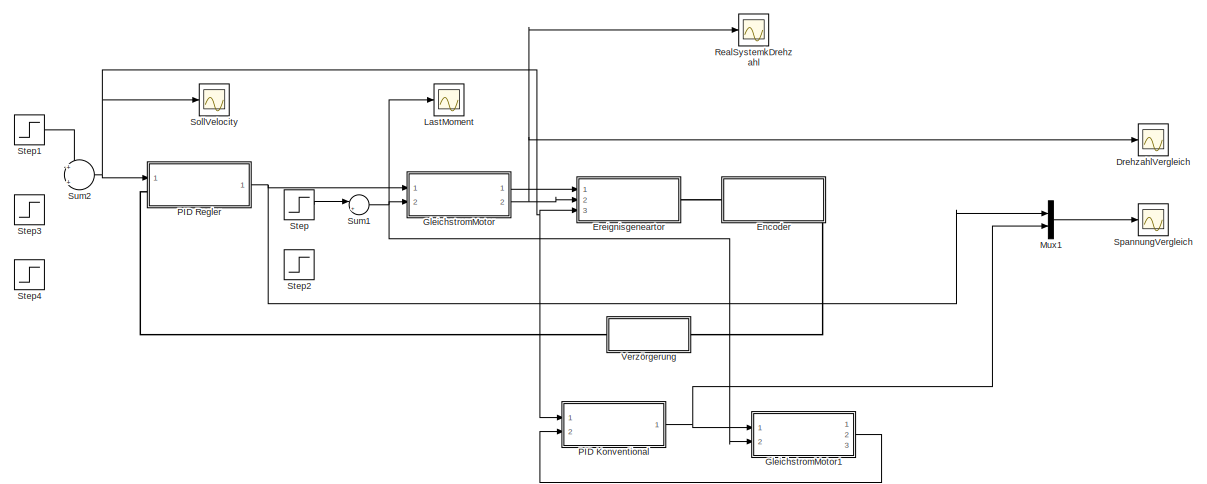
[diagram: root canvas - part 1/2, full width, top band]
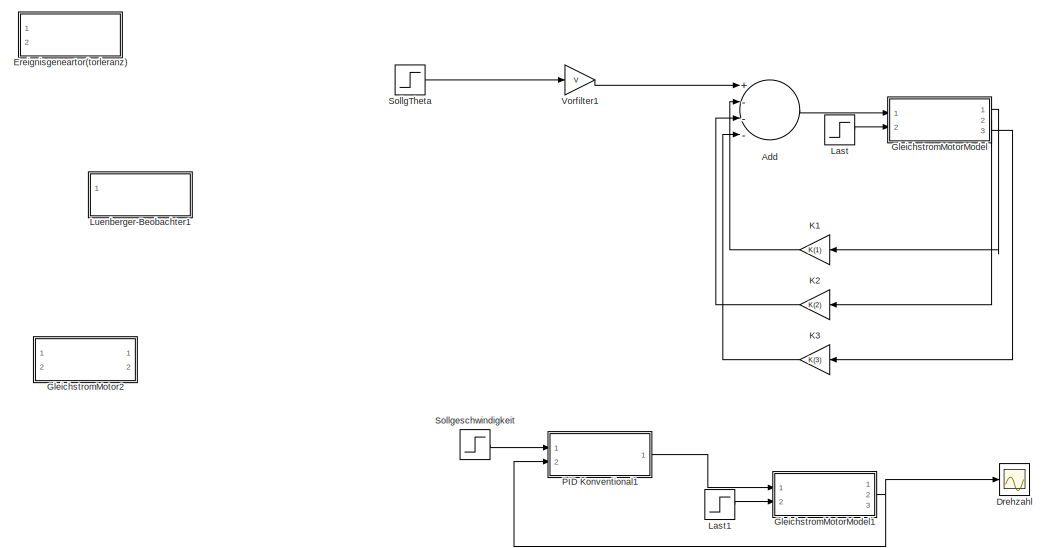
[diagram: root canvas - part 2/2, full width, bottom band]
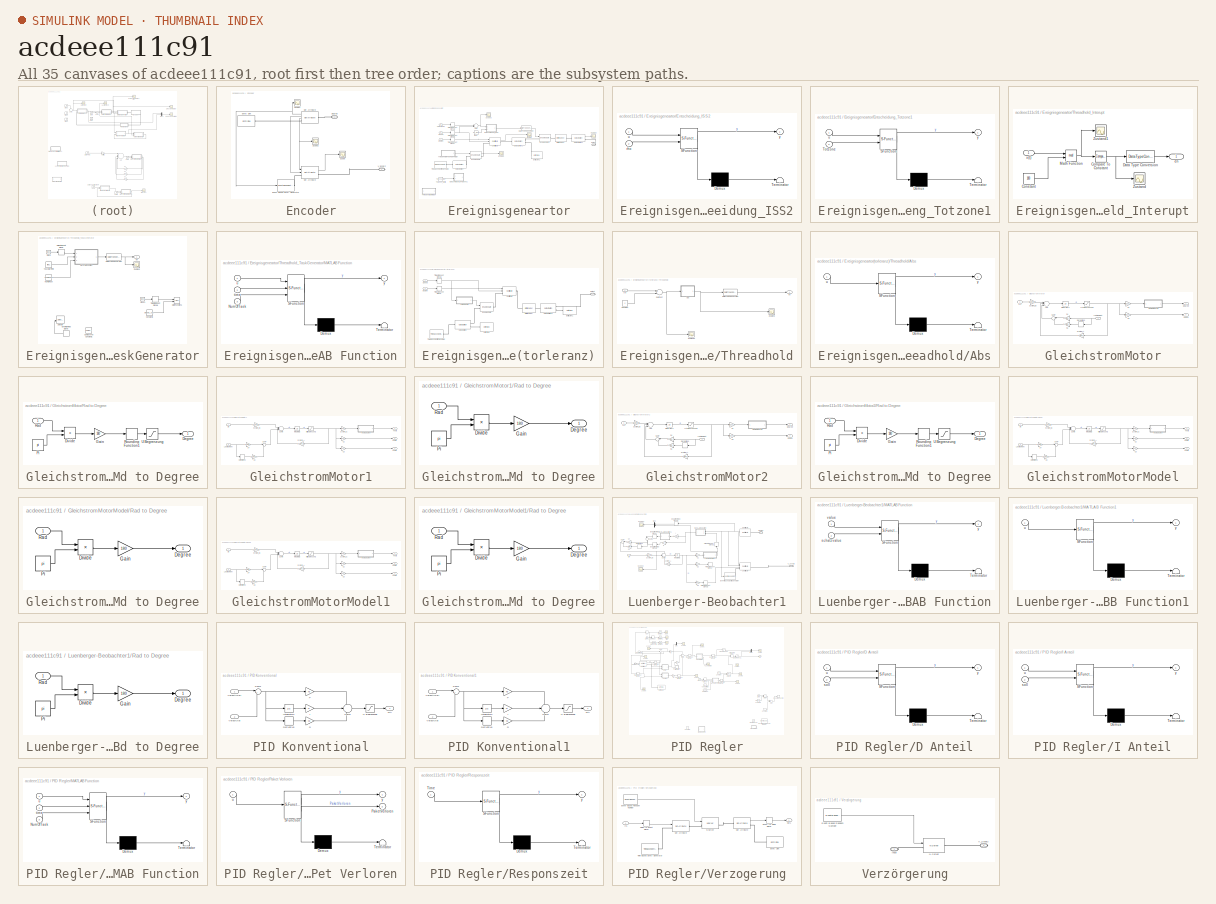
[diagram: thumbnail index - all 35 canvases of the model, root first then tree order]
MODEL slx_acdeee111c91
KIND model
CONFIG StopFcn = Evaluation
BLOCK [Sum] Add
  InputSameDT = off
  Inputs = +---
  OutDataTypeStr = Inherit: Inherit via internal rule
  Ports = [4, 1]
  SaturateOnIntegerOverflow = off
BLOCK [Scope] Drehzahl
  Floating = off
  LegendLocations = 0.90236     0.92928    0.096875    0.017681
  LimitDataPoints = off
  NumInputPorts = 1
  Ports = [1]
  SampleTime = 0
  SaveName = Drehzahl1
  SaveToWorkspace = on
  ShowLegends = on
  TimeRange = 40
  YMax = 0.35
  YMin = 0
BLOCK [Scope] DrehzahlVergleich
  DataFormat = StructureWithTime
  Floating = off
  LegendLocations = 0.91334     0.93108    0.062917     0.01436
  LimitDataPoints = off
  NumInputPorts = 1
  Ports = [1]
  SampleTime = 0
  SaveName = Drehzahl
  SaveToWorkspace = on
  ShowLegends = on
  TimeRange = 50
  YMax = 8
  YMin = 0
  ZoomMode = yonly
BLOCK [SubSystem] Encoder
  Ports = [0, 0, 0, 0, 0, 1, 1]
  RequestExecContextInheritance = off
BLOCK [PMIOPort] Encoder/Degree
  Port = 1
  Side = Left
BLOCK [EntitySink] Encoder/Entity Sink
  Ports = [0, 0, 0, 0, 0, 1]
BLOCK [EventBasedEntityGenerator] Encoder/Event-Based Entity Generator
  InputPortMap = u0
  Ports = [1, 0, 0, 0, 0, 0, 1]
  SignalEdgeType = Either
BLOCK [GetAttribute] Encoder/Get Attribute
  AttributeDefaultValue = 1|1
  AttributeMissing = Error|Error
  AttributeName = Value|Speed
  AttributeSendTiming = After entity departure|After entity departure
  AttributeTreatAsVector = 1|1
  EvaluatedDefaultAttributeValue = { [];[]}
  OutputPortMap = o0,o1,o2
  Ports = [0, 3, 0, 0, 0, 1, 1]
  StatNumberDeparted = on
BLOCK [Scope] Encoder/Scope
  DataFormat = StructureWithTime
  Floating = off
  LimitDataPoints = off
  NumInputPorts = 1
  Ports = [1]
  SampleTime = 0
  SaveName = Event
  SaveToWorkspace = on
  ShowLegends = off
BLOCK [Scope] Encoder/Scope1
  DataFormat = StructureWithTime
  Floating = off
  LimitDataPoints = off
  NumInputPorts = 1
  Ports = [1]
  SampleTime = 0
  SaveName = Event1
  SaveToWorkspace = on
  ShowLegends = off
BLOCK [Scope] Encoder/Scope2
  DataFormat = StructureWithTime
  Floating = off
  LimitDataPoints = off
  NumInputPorts = 1
  Ports = [1]
  SampleTime = 0
  SaveName = Event2
  SaveToWorkspace = on
  ShowLegends = off
BLOCK [SetAttribute] Encoder/Set Attribute
  AttributeFrom = Signal port|Signal port
  AttributeName = Value|Theta
  AttributeTreatAsVector = 1|1
  AttributeValue = 1|1
  EvaluatedAttributeValue = { [];[]}
  InputPortMap = u0,u1
  OutputPortMap = o0
  Ports = [2, 1, 0, 0, 0, 1, 1]
  StatNumberDeparted = on
BLOCK [PMIOPort] Encoder/V_Schatz
  Port = 2
  Side = Right
BLOCK [SubSystem] Ereignisgeneartor
  Ports = [3, 0, 0, 0, 0, 0, 1]
  RequestExecContextInheritance = off
BLOCK [SubSystem] Ereignisgeneartor(torleranz)
  Ports = [2, 0, 0, 0, 0, 0, 1]
  RequestExecContextInheritance = off
BLOCK [Inport] Ereignisgeneartor(torleranz)/Degree
  IconDisplay = Port number
BLOCK [EnabledGate] Ereignisgeneartor(torleranz)/Enabled Gate
  InputPortMap = u0
  Ports = [1, 0, 0, 0, 0, 1, 1]
BLOCK [EntitySink] Ereignisgeneartor(torleranz)/Entity Sink
  Ports = [0, 0, 0, 0, 0, 1]
BLOCK [EntitySink] Ereignisgeneartor(torleranz)/Entity Sink1
  Ports = [0, 0, 0, 0, 0, 1]
BLOCK [InfiniteServer] Ereignisgeneartor(torleranz)/Infinite Server
  Ports = [0, 0, 0, 0, 0, 1, 1]
  ServiceTime = 0.01
BLOCK [PMIOPort] Ereignisgeneartor(torleranz)/Output
  Port = 1
  Side = Right
BLOCK [OutputSwitch] Ereignisgeneartor(torleranz)/Output Switch
  NumberOutputPorts = 2
  Ports = [0, 0, 0, 0, 0, 1, 2]
BLOCK [OutputSwitch] Ereignisgeneartor(torleranz)/Output Switch1
  NumberOutputPorts = 2
  Ports = [0, 0, 0, 0, 0, 1, 2]
BLOCK [SetAttribute] Ereignisgeneartor(torleranz)/Set Attribute
  AttributeFrom = Signal port|Signal port
  AttributeName = Value|Speed
  AttributeTreatAsVector = 1|1
  AttributeValue = 1|1
  EvaluatedAttributeValue = { [];[]}
  InputPortMap = u0,u1
  Ports = [2, 0, 0, 0, 0, 1, 1]
BLOCK [Inport] Ereignisgeneartor(torleranz)/Speed
  IconDisplay = Port number
  Port = 2
BLOCK [SubSystem] Ereignisgeneartor(torleranz)/Threadhold
  Ports = [1, 1]
  RequestExecContextInheritance = off
BLOCK [SubSystem] Ereignisgeneartor(torleranz)/Threadhold/Abs
  ErrorFcn = Stateflow.Translate.translate
  PermitHierarchicalResolution = ExplicitOnly
  Ports = [1, 1]
  RequestExecContextInheritance = off
  SFBlockType = MATLAB Function
  TreatAsAtomicUnit = on
BLOCK [Demux] Ereignisgeneartor(torleranz)/Threadhold/Abs/ Demux 
  Outputs = 1
  Ports = [1, 1]
BLOCK [S-Function] Ereignisgeneartor(torleranz)/Threadhold/Abs/ SFunction 
  EnableBusSupport = on
  FunctionName = sf_sfun
  PortCounts = [1 2]
  Ports = [1, 2]
  Tag = Stateflow S-Function MasterArbeit_EreignisgeneratorsNachISS 6
BLOCK [Terminator] Ereignisgeneartor(torleranz)/Threadhold/Abs/ Terminator 
BLOCK [Inport] Ereignisgeneartor(torleranz)/Threadhold/Abs/u
  IconDisplay = Port number
BLOCK [Outport] Ereignisgeneartor(torleranz)/Threadhold/Abs/y
  IconDisplay = Port number
BLOCK [Constant] Ereignisgeneartor(torleranz)/Threadhold/Constant
  Value = 2
BLOCK [DataTypeConversion] Ereignisgeneartor(torleranz)/Threadhold/Data Type Conversion
  RndMeth = Floor
  SaturateOnIntegerOverflow = off
BLOCK [Sum] Ereignisgeneartor(torleranz)/Threadhold/Subtract
  InputSameDT = off
  Inputs = +-
  OutDataTypeStr = Inherit: Inherit via internal rule
  Ports = [2, 1]
  SaturateOnIntegerOverflow = off
BLOCK [Scope] Ereignisgeneartor(torleranz)/Threadhold/Zustand
  DataFormat = StructureWithTime
  Floating = off
  LimitDataPoints = off
  NumInputPorts = 1
  Ports = [1]
  SampleTime = 0
  SaveName = ScopeData2
  ShowLegends = off
  YMax = 1.05
  YMin = 0.95
BLOCK [Scope] Ereignisgeneartor(torleranz)/Threadhold/Zustand1
  DataFormat = StructureWithTime
  Floating = off
  LimitDataPoints = off
  NumInputPorts = 1
  Ports = [1]
  SampleTime = 0
  SaveName = ScopeData3
  ShowLegends = off
  YMax = 360
  YMin = 360
BLOCK [Outport] Ereignisgeneartor(torleranz)/Threadhold/en
  IconDisplay = Port number
BLOCK [Inport] Ereignisgeneartor(torleranz)/Threadhold/x(t)
  IconDisplay = Port number
BLOCK [TimeBasedEntityGenerator] Ereignisgeneartor(torleranz)/Time-Based Entity Generator
  Period = Ereignisgenerator_Sampletime
  Ports = [0, 0, 0, 0, 0, 0, 1]
BLOCK [TimedToEventSignal] Ereignisgeneartor(torleranz)/Timed to Event Signal
  InputPortMap = u0
  OutputPortMap = o0
  Ports = [1, 1]
BLOCK [TimedToEventSignal] Ereignisgeneartor(torleranz)/Timed to Event Signal1
  InputPortMap = u0
  OutputPortMap = o0
  Ports = [1, 1]
BLOCK [Sum] Ereignisgeneartor/Add
  InputSameDT = off
  Inputs = +-
  OutDataTypeStr = Inherit: Inherit via internal rule
  Ports = [2, 1]
  SaturateOnIntegerOverflow = off
BLOCK [DataTypeConversion] Ereignisgeneartor/Data Type Conversion
  RndMeth = Floor
  SaturateOnIntegerOverflow = off
BLOCK [Inport] Ereignisgeneartor/Degree
  IconDisplay = Port number
BLOCK [EnabledGate] Ereignisgeneartor/Enabled Gate
  InputPortMap = u0
  OutputPortMap = o0
  Ports = [1, 1, 0, 0, 0, 1, 1]
  StatNumberDeparted = on
BLOCK [EnabledGate] Ereignisgeneartor/Enabled Gate1
  InputPortMap = u0
  Ports = [1, 0, 0, 0, 0, 1, 1]
BLOCK [EntitySink] Ereignisgeneartor/Entity Sink2
  Ports = [0, 0, 0, 0, 0, 1]
BLOCK [SubSystem] Ereignisgeneartor/Entscheidung_ISS2
  ErrorFcn = Stateflow.Translate.translate
  PermitHierarchicalResolution = ExplicitOnly
  Ports = [2, 1]
  RequestExecContextInheritance = off
  SFBlockType = MATLAB Function
  TreatAsAtomicUnit = on
BLOCK [Demux] Ereignisgeneartor/Entscheidung_ISS2/ Demux 
  Outputs = 1
  Ports = [1, 1]
BLOCK [S-Function] Ereignisgeneartor/Entscheidung_ISS2/ SFunction 
  EnableBusSupport = on
  FunctionName = sf_sfun
  PortCounts = [2 2]
  Ports = [2, 2]
  Tag = Stateflow S-Function MasterArbeit_EreignisgeneratorsNachISS 12
BLOCK [Terminator] Ereignisgeneartor/Entscheidung_ISS2/ Terminator 
BLOCK [Inport] Ereignisgeneartor/Entscheidung_ISS2/rho
  IconDisplay = Port number
  Port = 2
BLOCK [Inport] Ereignisgeneartor/Entscheidung_ISS2/u
  IconDisplay = Port number
BLOCK [Outport] Ereignisgeneartor/Entscheidung_ISS2/y
  IconDisplay = Port number
BLOCK [SubSystem] Ereignisgeneartor/Entscheidung_Totzone1
  ErrorFcn = Stateflow.Translate.translate
  PermitHierarchicalResolution = ExplicitOnly
  Ports = [2, 1]
  RequestExecContextInheritance = off
  SFBlockType = MATLAB Function
  TreatAsAtomicUnit = on
BLOCK [Demux] Ereignisgeneartor/Entscheidung_Totzone1/ Demux 
  Outputs = 1
  Ports = [1, 1]
BLOCK [S-Function] Ereignisgeneartor/Entscheidung_Totzone1/ SFunction 
  EnableBusSupport = on
  FunctionName = sf_sfun
  PortCounts = [2 2]
  Ports = [2, 2]
  Tag = Stateflow S-Function MasterArbeit_EreignisgeneratorsNachISS 7
BLOCK [Terminator] Ereignisgeneartor/Entscheidung_Totzone1/ Terminator 
BLOCK [Inport] Ereignisgeneartor/Entscheidung_Totzone1/Totzone
  IconDisplay = Port number
  Port = 2
BLOCK [Inport] Ereignisgeneartor/Entscheidung_Totzone1/u
  IconDisplay = Port number
BLOCK [Outport] Ereignisgeneartor/Entscheidung_Totzone1/y
  IconDisplay = Port number
BLOCK [InfiniteServer] Ereignisgeneartor/Infinite Server
  Ports = [0, 0, 0, 0, 0, 1, 1]
  ServiceTime = 0.01
BLOCK [PMIOPort] Ereignisgeneartor/Output
  Port = 1
  Side = Right
BLOCK [OutputSwitch] Ereignisgeneartor/Output Switch
  NumberOutputPorts = 1
  Ports = [0, 0, 0, 0, 0, 1, 1]
BLOCK [OutputSwitch] Ereignisgeneartor/Output Switch1
  NumberOutputPorts = 1
  OutputPortMap = o0
  Ports = [0, 1, 0, 0, 0, 1, 1]
  StatNumberDeparted = on
BLOCK [OutputSwitch] Ereignisgeneartor/Output Switch2
  NumberOutputPorts = 2
  Ports = [0, 0, 0, 0, 0, 1, 2]
BLOCK [Scope] Ereignisgeneartor/Scope
  DataFormat = StructureWithTime
  Floating = off
  LimitDataPoints = off
  NumInputPorts = 1
  Ports = [1]
  SampleTime = 0
  SaveName = ScopeData14
  ShowLegends = off
BLOCK [Scope] Ereignisgeneartor/Scope1
  DataFormat = StructureWithTime
  Floating = off
  LimitDataPoints = off
  NumInputPorts = 1
  Ports = [1]
  SampleTime = 0
  SaveName = ScopeData19
  ShowLegends = off
BLOCK [Scope] Ereignisgeneartor/Scope2
  Floating = off
  LimitDataPoints = off
  NumInputPorts = 1
  Ports = [1]
  SampleTime = 0
  SaveName = Anzahl
  SaveToWorkspace = on
  ShowLegends = off
BLOCK [Scope] Ereignisgeneartor/Scope3
  DataFormat = StructureWithTime
  Floating = off
  LimitDataPoints = off
  NumInputPorts = 1
  Ports = [1]
  SampleTime = 0
  SaveName = ScopeData11
  ShowLegends = off
  TimeRange = 50
BLOCK [SetAttribute] Ereignisgeneartor/Set Attribute
  AttributeFrom = Signal port|Signal port
  AttributeName = Value|Speed
  AttributeTreatAsVector = 1|1
  AttributeValue = 1|1
  EvaluatedAttributeValue = { [];[]}
  InputPortMap = u0,u1
  OutputPortMap = o0
  Ports = [2, 1, 0, 0, 0, 1, 1]
  StatNumberDeparted = on
BLOCK [Inport] Ereignisgeneartor/Speed
  IconDisplay = Port number
  Port = 2
BLOCK [SubSystem] Ereignisgeneartor/Threadhold_Interupt
  Ports = [1, 1]
  RequestExecContextInheritance = off
BLOCK [Reference] Ereignisgeneartor/Threadhold_Interupt/Compare To Constant  REF=simulink/Logic and Bit
Operations/Compare
To Constant
  OutDataTypeStr = boolean
  Ports = [1, 1]
  SourceBlock = simulink/Logic and Bit\nOperations/Compare\nTo Constant
  SourceType = Compare To Constant
  ZeroCross = on
  const = 0
  relop = ==
BLOCK [Constant] Ereignisgeneartor/Threadhold_Interupt/Constant
  Value = 180
BLOCK [DataTypeConversion] Ereignisgeneartor/Threadhold_Interupt/Data Type Conversion
  RndMeth = Floor
  SaturateOnIntegerOverflow = off
BLOCK [Math] Ereignisgeneartor/Threadhold_Interupt/Math Function
  Operator = mod
  OutputSignalType = real
  Ports = [2, 1]
BLOCK [Scope] Ereignisgeneartor/Threadhold_Interupt/Zustand
  DataFormat = StructureWithTime
  Floating = off
  NumInputPorts = 1
  Ports = [1]
  SampleTime = 0
  SaveName = ScopeData2
  ShowLegends = off
  TimeRange = 24.40000000000001
  YMax = -0.3307086614173231
  YMin = -4.330708661417323
BLOCK [Scope] Ereignisgeneartor/Threadhold_Interupt/Zustand1
  DataFormat = StructureWithTime
  Floating = off
  NumInputPorts = 1
  Ports = [1]
  SampleTime = 0
  SaveName = ScopeData25
  ShowLegends = off
  TimeRange = 24.40000000000001
  YMax = -0.3307086614173231
  YMin = -4.330708661417323
BLOCK [Outport] Ereignisgeneartor/Threadhold_Interupt/en
  IconDisplay = Port number
BLOCK [Inport] Ereignisgeneartor/Threadhold_Interupt/x(t)
  IconDisplay = Port number
BLOCK [SubSystem] Ereignisgeneartor/Threadhold_TaskGenerator
  Ports = [0, 1]
  RequestExecContextInheritance = off
BLOCK [Clock] Ereignisgeneartor/Threadhold_TaskGenerator/Clock
BLOCK [Clock] Ereignisgeneartor/Threadhold_TaskGenerator/Clock1
BLOCK [Reference] Ereignisgeneartor/Threadhold_TaskGenerator/Compare To Constant1  REF=simulink/Logic and Bit
Operations/Compare
To Constant
  OutDataTypeStr = boolean
  Ports = [1, 1]
  SourceBlock = simulink/Logic and Bit\nOperations/Compare\nTo Constant
  SourceType = Compare To Constant
  ZeroCross = on
  const = 0.01
  relop = <=
BLOCK [Constant] Ereignisgeneartor/Threadhold_TaskGenerator/Constant1
  Value = Ereignis_Abtastzeit
BLOCK [DataTypeConversion] Ereignisgeneartor/Threadhold_TaskGenerator/Data Type Conversion
  RndMeth = Floor
  SaturateOnIntegerOverflow = off
BLOCK [EventToTimedSignal] Ereignisgeneartor/Threadhold_TaskGenerator/Event to Timed Signal
  InputPortMap = u0
  OutputPortMap = o0
  Ports = [1, 1]
BLOCK [SubSystem] Ereignisgeneartor/Threadhold_TaskGenerator/MATLAB Function
  ErrorFcn = Stateflow.Translate.translate
  PermitHierarchicalResolution = ExplicitOnly
  Ports = [3, 1]
  RequestExecContextInheritance = off
  SFBlockType = MATLAB Function
  TreatAsAtomicUnit = on
BLOCK [Demux] Ereignisgeneartor/Threadhold_TaskGenerator/MATLAB Function/ Demux 
  Outputs = 1
  Ports = [1, 1]
BLOCK [S-Function] Ereignisgeneartor/Threadhold_TaskGenerator/MATLAB Function/ SFunction 
  EnableBusSupport = on
  FunctionName = sf_sfun
  PortCounts = [3 2]
  Ports = [3, 2]
  Tag = Stateflow S-Function MasterArbeit_EreignisgeneratorsNachISS 9
BLOCK [Terminator] Ereignisgeneartor/Threadhold_TaskGenerator/MATLAB Function/ Terminator 
BLOCK [Inport] Ereignisgeneartor/Threadhold_TaskGenerator/MATLAB Function/NumOfTask
  IconDisplay = Port number
  Port = 3
BLOCK [Inport] Ereignisgeneartor/Threadhold_TaskGenerator/MATLAB Function/time
  IconDisplay = Port number
  Port = 2
BLOCK [Inport] Ereignisgeneartor/Threadhold_TaskGenerator/MATLAB Function/u
  IconDisplay = Port number
BLOCK [Outport] Ereignisgeneartor/Threadhold_TaskGenerator/MATLAB Function/y
  IconDisplay = Port number
BLOCK [Math] Ereignisgeneartor/Threadhold_TaskGenerator/Math Function1
  Operator = mod
  Ports = [2, 1]
BLOCK [Constant] Ereignisgeneartor/Threadhold_TaskGenerator/NumOfTask
  Value = NumOfTask
BLOCK [Selector] Ereignisgeneartor/Threadhold_TaskGenerator/Selector
  IndexOptions = Index vector (port)
  Indices = [1 3]
  InputPortWidth = 20
  Ports = [2, 1]
BLOCK [Constant] Ereignisgeneartor/Threadhold_TaskGenerator/TaskStartTime
  Value = time1
BLOCK [TimedToEventSignal] Ereignisgeneartor/Threadhold_TaskGenerator/Timed to Event Signal
  InputPortMap = u0
  OutputPortMap = o0
  Ports = [1, 1]
BLOCK [TimedToEventSignal] Ereignisgeneartor/Threadhold_TaskGenerator/Timed to Event Signal1
  InputPortMap = u0
  OutputPortMap = o0
  Ports = [1, 1]
BLOCK [Scope] Ereignisgeneartor/Threadhold_TaskGenerator/Zustand
  DataFormat = StructureWithTime
  Floating = off
  LimitDataPoints = off
  NumInputPorts = 1
  Ports = [1]
  SampleTime = 0
  SaveName = ScopeData2
  ShowLegends = off
BLOCK [Outport] Ereignisgeneartor/Threadhold_TaskGenerator/en
  IconDisplay = Port number
BLOCK [TimeBasedEntityGenerator] Ereignisgeneartor/Time-Based Entity Generator
  Period = Ereignisgenerator_Sampletime
  Ports = [0, 0, 0, 0, 0, 0, 1]
BLOCK [TimedToEventSignal] Ereignisgeneartor/Timed to Event Signal
  InputPortMap = u0
  OutputPortMap = o0
  Ports = [1, 1]
BLOCK [TimedToEventSignal] Ereignisgeneartor/Timed to Event Signal1
  InputPortMap = u0
  OutputPortMap = o0
  Ports = [1, 1]
BLOCK [TimedToEventSignal] Ereignisgeneartor/Timed to Event Signal2
  InputPortMap = u0
  OutputPortMap = o0
  Ports = [1, 1]
BLOCK [Constant] Ereignisgeneartor/Totzone_Wert1
  Value = Totzone_Wert
BLOCK [Inport] Ereignisgeneartor/VelocitySoll
  IconDisplay = Port number
  Port = 3
BLOCK [Constant] Ereignisgeneartor/rho2
  Value = rho_Wert
BLOCK [SubSystem] GleichstromMotor
  Ports = [2, 2]
  RequestExecContextInheritance = off
BLOCK [Sum] GleichstromMotor/Add
  InputSameDT = off
  Inputs = ++-
  OutDataTypeStr = Inherit: Inherit via internal rule
  Ports = [3, 1]
  SaturateOnIntegerOverflow = off
BLOCK [Gain] GleichstromMotor/C1
  Gain = [1,0,0]
  Multiplication = Matrix(K*u)
  OutDataTypeStr = Inherit: Inherit via internal rule
  ParamDataTypeStr = Inherit: Inherit via internal rule
  SaturateOnIntegerOverflow = off
BLOCK [Gain] GleichstromMotor/C2
  Gain = [0,1,0]
  Multiplication = Matrix(K*u)
  OutDataTypeStr = Inherit: Inherit via internal rule
  ParamDataTypeStr = Inherit: Inherit via internal rule
  SaturateOnIntegerOverflow = off
BLOCK [Outport] GleichstromMotor/Degree
  IconDisplay = Port number
BLOCK [Derivative] GleichstromMotor/Derivative3
BLOCK [Integrator] GleichstromMotor/Integrator2
  Ports = [1, 1]
BLOCK [Inport] GleichstromMotor/LastMoment
  IconDisplay = Port number
  Port = 2
BLOCK [SubSystem] GleichstromMotor/Rad to Degree
  Ports = [1, 1]
  RequestExecContextInheritance = off
BLOCK [Outport] GleichstromMotor/Rad to Degree/Degree
  IconDisplay = Port number
BLOCK [Product] GleichstromMotor/Rad to Degree/Divide
  InputSameDT = off
  Inputs = */
  OutDataTypeStr = Inherit: Inherit via internal rule
  Ports = [2, 1]
  RndMeth = Floor
  SaturateOnIntegerOverflow = off
BLOCK [Gain] GleichstromMotor/Rad to Degree/Gain
  Gain = 180
  OutDataTypeStr = Inherit: Inherit via internal rule
  ParamDataTypeStr = Inherit: Inherit via internal rule
  SaturateOnIntegerOverflow = off
BLOCK [Constant] GleichstromMotor/Rad to Degree/Pi
  Value = pi
BLOCK [Inport] GleichstromMotor/Rad to Degree/Rad
  IconDisplay = Port number
BLOCK [Rounding] GleichstromMotor/Rad to Degree/Rounding Function1
BLOCK [Saturate] GleichstromMotor/Rad to Degree/U Begrenzung
  InputPortMap = u0
  LowerLimit = 1
  Ports = [1, 1]
  UpperLimit = inf
  ZeroCross = off
BLOCK [Gain] GleichstromMotor/S3
  Gain = System_S1
  Multiplication = Matrix(K*u)
  OutDataTypeStr = Inherit: Inherit via internal rule
  ParamDataTypeStr = Inherit: Inherit via internal rule
  SaturateOnIntegerOverflow = off
BLOCK [Gain] GleichstromMotor/S4
  Gain = System_S2
  Multiplication = Matrix(K*u)
  OutDataTypeStr = Inherit: Inherit via internal rule
  ParamDataTypeStr = Inherit: Inherit via internal rule
  SaturateOnIntegerOverflow = off
BLOCK [Outport] GleichstromMotor/Speed
  IconDisplay = Port number
  Port = 2
BLOCK [Sum] GleichstromMotor/Sum7
  IconShape = round
  InputSameDT = off
  Inputs = |++
  OutDataTypeStr = Inherit: Inherit via internal rule
  Ports = [2, 1]
  SaturateOnIntegerOverflow = off
BLOCK [Gain] GleichstromMotor/System_A
  Gain = System_A
  Multiplication = Matrix(K*u)
  OutDataTypeStr = Inherit: Inherit via internal rule
  ParamDataTypeStr = Inherit: Inherit via internal rule
  SaturateOnIntegerOverflow = off
BLOCK [Gain] GleichstromMotor/System_B
  Gain = System_B
  Multiplication = Matrix(K*u)
  OutDataTypeStr = Inherit: Inherit via internal rule
  ParamDataTypeStr = Inherit: Inherit via internal rule
  SaturateOnIntegerOverflow = off
BLOCK [Inport] GleichstromMotor/u(t)
  IconDisplay = Port number
BLOCK [Saturate] GleichstromMotor/x(t) Begrenzung
  InputPortMap = u0
  LowerLimit = -50
  Ports = [1, 1]
  UpperLimit = [inf,inf,20]
BLOCK [SubSystem] GleichstromMotor1
  Ports = [2, 3]
  RequestExecContextInheritance = off
BLOCK [Gain] GleichstromMotor1/C2
  Gain = [0,1,0]
  Multiplication = Matrix(K*u)
  OutDataTypeStr = Inherit: Inherit via internal rule
  ParamDataTypeStr = Inherit: Inherit via internal rule
  SaturateOnIntegerOverflow = off
BLOCK [Gain] GleichstromMotor1/C3
  Gain = [0,0,1]
  Multiplication = Matrix(K*u)
  OutDataTypeStr = Inherit: Inherit via internal rule
  ParamDataTypeStr = Inherit: Inherit via internal rule
  SaturateOnIntegerOverflow = off
BLOCK [Derivative] GleichstromMotor1/Derivative3
BLOCK [Integrator] GleichstromMotor1/Integrator2
  Ports = [1, 1]
BLOCK [Inport] GleichstromMotor1/LastMoment
  IconDisplay = Port number
  Port = 2
BLOCK [SubSystem] GleichstromMotor1/Rad to Degree
  Ports = [1, 1]
  RequestExecContextInheritance = off
BLOCK [Outport] GleichstromMotor1/Rad to Degree/Degree
  IconDisplay = Port number
BLOCK [Product] GleichstromMotor1/Rad to Degree/Divide
  InputSameDT = off
  Inputs = */
  OutDataTypeStr = Inherit: Inherit via internal rule
  Ports = [2, 1]
  RndMeth = Floor
  SaturateOnIntegerOverflow = off
BLOCK [Gain] GleichstromMotor1/Rad to Degree/Gain
  Gain = 180
  OutDataTypeStr = Inherit: Inherit via internal rule
  ParamDataTypeStr = Inherit: Inherit via internal rule
  SaturateOnIntegerOverflow = off
BLOCK [Constant] GleichstromMotor1/Rad to Degree/Pi
  Value = pi
BLOCK [Inport] GleichstromMotor1/Rad to Degree/Rad
  IconDisplay = Port number
BLOCK [Gain] GleichstromMotor1/S3
  Gain = System_S1
  Multiplication = Matrix(K*u)
  OutDataTypeStr = Inherit: Inherit via internal rule
  ParamDataTypeStr = Inherit: Inherit via internal rule
  SaturateOnIntegerOverflow = off
BLOCK [Gain] GleichstromMotor1/S4
  Gain = System_S2
  Multiplication = Matrix(K*u)
  OutDataTypeStr = Inherit: Inherit via internal rule
  ParamDataTypeStr = Inherit: Inherit via internal rule
  SaturateOnIntegerOverflow = off
BLOCK [Sum] GleichstromMotor1/Sum5
  InputSameDT = off
  Inputs = +|+|-
  OutDataTypeStr = Inherit: Inherit via internal rule
  Ports = [3, 1]
  SaturateOnIntegerOverflow = off
BLOCK [Sum] GleichstromMotor1/Sum7
  IconShape = round
  InputSameDT = off
  Inputs = |++
  OutDataTypeStr = Inherit: Inherit via internal rule
  Ports = [2, 1]
  SaturateOnIntegerOverflow = off
BLOCK [Gain] GleichstromMotor1/System_A
  Gain = System_A
  Multiplication = Matrix(K*u)
  OutDataTypeStr = Inherit: Inherit via internal rule
  ParamDataTypeStr = Inherit: Inherit via internal rule
  SaturateOnIntegerOverflow = off
BLOCK [Gain] GleichstromMotor1/System_B
  Gain = System_B
  Multiplication = Matrix(K*u)
  OutDataTypeStr = Inherit: Inherit via internal rule
  ParamDataTypeStr = Inherit: Inherit via internal rule
  SaturateOnIntegerOverflow = off
BLOCK [Gain] GleichstromMotor1/System_C
  Gain = [1,0,0]
  Multiplication = Matrix(K*u)
  OutDataTypeStr = Inherit: Inherit via internal rule
  ParamDataTypeStr = Inherit: Inherit via internal rule
  SaturateOnIntegerOverflow = off
BLOCK [Outport] GleichstromMotor1/Theta
  IconDisplay = Port number
BLOCK [Outport] GleichstromMotor1/Theta'
  IconDisplay = Port number
  Port = 2
BLOCK [Outport] GleichstromMotor1/Theta''
  IconDisplay = Port number
  Port = 3
BLOCK [Inport] GleichstromMotor1/u(t)
  IconDisplay = Port number
BLOCK [Saturate] GleichstromMotor1/x(t) Begrenzung
  InputPortMap = u0
  LowerLimit = -50
  Ports = [1, 1]
  UpperLimit = [inf,inf,20]
BLOCK [SubSystem] GleichstromMotor2
  Ports = [2, 2]
  RequestExecContextInheritance = off
BLOCK [Sum] GleichstromMotor2/Add
  InputSameDT = off
  Inputs = ++-
  OutDataTypeStr = Inherit: Inherit via internal rule
  Ports = [3, 1]
  SaturateOnIntegerOverflow = off
BLOCK [Gain] GleichstromMotor2/C1
  Gain = [1,0,0]
  Multiplication = Matrix(K*u)
  OutDataTypeStr = Inherit: Inherit via internal rule
  ParamDataTypeStr = Inherit: Inherit via internal rule
  SaturateOnIntegerOverflow = off
BLOCK [Gain] GleichstromMotor2/C2
  Gain = [0,1,0]
  Multiplication = Matrix(K*u)
  OutDataTypeStr = Inherit: Inherit via internal rule
  ParamDataTypeStr = Inherit: Inherit via internal rule
  SaturateOnIntegerOverflow = off
BLOCK [Outport] GleichstromMotor2/Degree
  IconDisplay = Port number
BLOCK [Derivative] GleichstromMotor2/Derivative3
BLOCK [Integrator] GleichstromMotor2/Integrator2
  Ports = [1, 1]
BLOCK [Inport] GleichstromMotor2/LastMoment
  IconDisplay = Port number
  Port = 2
BLOCK [SubSystem] GleichstromMotor2/Rad to Degree
  Ports = [1, 1]
  RequestExecContextInheritance = off
BLOCK [Outport] GleichstromMotor2/Rad to Degree/Degree
  IconDisplay = Port number
BLOCK [Product] GleichstromMotor2/Rad to Degree/Divide
  InputSameDT = off
  Inputs = */
  OutDataTypeStr = Inherit: Inherit via internal rule
  Ports = [2, 1]
  RndMeth = Floor
  SaturateOnIntegerOverflow = off
BLOCK [Gain] GleichstromMotor2/Rad to Degree/Gain
  Gain = 180
  OutDataTypeStr = Inherit: Inherit via internal rule
  ParamDataTypeStr = Inherit: Inherit via internal rule
  SaturateOnIntegerOverflow = off
BLOCK [Constant] GleichstromMotor2/Rad to Degree/Pi
  Value = pi
BLOCK [Inport] GleichstromMotor2/Rad to Degree/Rad
  IconDisplay = Port number
BLOCK [Rounding] GleichstromMotor2/Rad to Degree/Rounding Function1
BLOCK [Saturate] GleichstromMotor2/Rad to Degree/U Begrenzung
  InputPortMap = u0
  LowerLimit = 1
  Ports = [1, 1]
  UpperLimit = inf
  ZeroCross = off
BLOCK [Gain] GleichstromMotor2/S3
  Gain = System_S1
  Multiplication = Matrix(K*u)
  OutDataTypeStr = Inherit: Inherit via internal rule
  ParamDataTypeStr = Inherit: Inherit via internal rule
  SaturateOnIntegerOverflow = off
BLOCK [Gain] GleichstromMotor2/S4
  Gain = System_S2
  Multiplication = Matrix(K*u)
  OutDataTypeStr = Inherit: Inherit via internal rule
  ParamDataTypeStr = Inherit: Inherit via internal rule
  SaturateOnIntegerOverflow = off
BLOCK [Outport] GleichstromMotor2/Speed
  IconDisplay = Port number
  Port = 2
BLOCK [Sum] GleichstromMotor2/Sum7
  IconShape = round
  InputSameDT = off
  Inputs = |++
  OutDataTypeStr = Inherit: Inherit via internal rule
  Ports = [2, 1]
  SaturateOnIntegerOverflow = off
BLOCK [Gain] GleichstromMotor2/System_A
  Gain = System_A
  Multiplication = Matrix(K*u)
  OutDataTypeStr = Inherit: Inherit via internal rule
  ParamDataTypeStr = Inherit: Inherit via internal rule
  SaturateOnIntegerOverflow = off
BLOCK [Gain] GleichstromMotor2/System_B
  Gain = System_B
  Multiplication = Matrix(K*u)
  OutDataTypeStr = Inherit: Inherit via internal rule
  ParamDataTypeStr = Inherit: Inherit via internal rule
  SaturateOnIntegerOverflow = off
BLOCK [Inport] GleichstromMotor2/u(t)
  IconDisplay = Port number
BLOCK [Saturate] GleichstromMotor2/x(t) Begrenzung
  InputPortMap = u0
  LowerLimit = -50
  Ports = [1, 1]
  UpperLimit = [inf,inf,20]
BLOCK [SubSystem] GleichstromMotorModel
  Ports = [2, 3]
  RequestExecContextInheritance = off
BLOCK [Gain] GleichstromMotorModel/C2
  Gain = [0,1,0]
  Multiplication = Matrix(K*u)
  OutDataTypeStr = Inherit: Inherit via internal rule
  ParamDataTypeStr = Inherit: Inherit via internal rule
  SaturateOnIntegerOverflow = off
BLOCK [Gain] GleichstromMotorModel/C3
  Gain = [0,0,1]
  Multiplication = Matrix(K*u)
  OutDataTypeStr = Inherit: Inherit via internal rule
  ParamDataTypeStr = Inherit: Inherit via internal rule
  SaturateOnIntegerOverflow = off
BLOCK [Derivative] GleichstromMotorModel/Derivative3
BLOCK [Integrator] GleichstromMotorModel/Integrator2
  Ports = [1, 1]
BLOCK [Inport] GleichstromMotorModel/LastMoment
  IconDisplay = Port number
  Port = 2
BLOCK [SubSystem] GleichstromMotorModel/Rad to Degree
  Ports = [1, 1]
  RequestExecContextInheritance = off
BLOCK [Outport] GleichstromMotorModel/Rad to Degree/Degree
  IconDisplay = Port number
BLOCK [Product] GleichstromMotorModel/Rad to Degree/Divide
  InputSameDT = off
  Inputs = */
  OutDataTypeStr = Inherit: Inherit via internal rule
  Ports = [2, 1]
  RndMeth = Floor
  SaturateOnIntegerOverflow = off
BLOCK [Gain] GleichstromMotorModel/Rad to Degree/Gain
  Gain = 180
  OutDataTypeStr = Inherit: Inherit via internal rule
  ParamDataTypeStr = Inherit: Inherit via internal rule
  SaturateOnIntegerOverflow = off
BLOCK [Constant] GleichstromMotorModel/Rad to Degree/Pi
  Value = pi
BLOCK [Inport] GleichstromMotorModel/Rad to Degree/Rad
  IconDisplay = Port number
BLOCK [Gain] GleichstromMotorModel/S3
  Gain = System_S1
  Multiplication = Matrix(K*u)
  OutDataTypeStr = Inherit: Inherit via internal rule
  ParamDataTypeStr = Inherit: Inherit via internal rule
  SaturateOnIntegerOverflow = off
BLOCK [Gain] GleichstromMotorModel/S4
  Gain = System_S2
  Multiplication = Matrix(K*u)
  OutDataTypeStr = Inherit: Inherit via internal rule
  ParamDataTypeStr = Inherit: Inherit via internal rule
  SaturateOnIntegerOverflow = off
BLOCK [Sum] GleichstromMotorModel/Sum5
  InputSameDT = off
  Inputs = +|+|-
  OutDataTypeStr = Inherit: Inherit via internal rule
  Ports = [3, 1]
  SaturateOnIntegerOverflow = off
BLOCK [Sum] GleichstromMotorModel/Sum7
  IconShape = round
  InputSameDT = off
  Inputs = |++
  OutDataTypeStr = Inherit: Inherit via internal rule
  Ports = [2, 1]
  SaturateOnIntegerOverflow = off
BLOCK [Gain] GleichstromMotorModel/System_A
  Gain = System_A
  Multiplication = Matrix(K*u)
  OutDataTypeStr = Inherit: Inherit via internal rule
  ParamDataTypeStr = Inherit: Inherit via internal rule
  SaturateOnIntegerOverflow = off
BLOCK [Gain] GleichstromMotorModel/System_B
  Gain = System_B
  Multiplication = Matrix(K*u)
  OutDataTypeStr = Inherit: Inherit via internal rule
  ParamDataTypeStr = Inherit: Inherit via internal rule
  SaturateOnIntegerOverflow = off
BLOCK [Gain] GleichstromMotorModel/System_C
  Gain = [1,0,0]
  Multiplication = Matrix(K*u)
  OutDataTypeStr = Inherit: Inherit via internal rule
  ParamDataTypeStr = Inherit: Inherit via internal rule
  SaturateOnIntegerOverflow = off
BLOCK [Outport] GleichstromMotorModel/Theta
  IconDisplay = Port number
BLOCK [Outport] GleichstromMotorModel/Theta'
  IconDisplay = Port number
  Port = 2
BLOCK [Outport] GleichstromMotorModel/Theta''
  IconDisplay = Port number
  Port = 3
BLOCK [Inport] GleichstromMotorModel/u(t)
  IconDisplay = Port number
BLOCK [Saturate] GleichstromMotorModel/x(t) Begrenzung
  InputPortMap = u0
  LowerLimit = -50
  Ports = [1, 1]
  UpperLimit = [inf,inf,20]
BLOCK [SubSystem] GleichstromMotorModel1
  Ports = [2, 3]
  RequestExecContextInheritance = off
BLOCK [Gain] GleichstromMotorModel1/C2
  Gain = [0,1,0]
  Multiplication = Matrix(K*u)
  OutDataTypeStr = Inherit: Inherit via internal rule
  ParamDataTypeStr = Inherit: Inherit via internal rule
  SaturateOnIntegerOverflow = off
BLOCK [Gain] GleichstromMotorModel1/C3
  Gain = [0,0,1]
  Multiplication = Matrix(K*u)
  OutDataTypeStr = Inherit: Inherit via internal rule
  ParamDataTypeStr = Inherit: Inherit via internal rule
  SaturateOnIntegerOverflow = off
BLOCK [Derivative] GleichstromMotorModel1/Derivative3
BLOCK [Integrator] GleichstromMotorModel1/Integrator2
  Ports = [1, 1]
BLOCK [Inport] GleichstromMotorModel1/LastMoment
  IconDisplay = Port number
  Port = 2
BLOCK [SubSystem] GleichstromMotorModel1/Rad to Degree
  Ports = [1, 1]
  RequestExecContextInheritance = off
BLOCK [Outport] GleichstromMotorModel1/Rad to Degree/Degree
  IconDisplay = Port number
BLOCK [Product] GleichstromMotorModel1/Rad to Degree/Divide
  InputSameDT = off
  Inputs = */
  OutDataTypeStr = Inherit: Inherit via internal rule
  Ports = [2, 1]
  RndMeth = Floor
  SaturateOnIntegerOverflow = off
BLOCK [Gain] GleichstromMotorModel1/Rad to Degree/Gain
  Gain = 180
  OutDataTypeStr = Inherit: Inherit via internal rule
  ParamDataTypeStr = Inherit: Inherit via internal rule
  SaturateOnIntegerOverflow = off
BLOCK [Constant] GleichstromMotorModel1/Rad to Degree/Pi
  Value = pi
BLOCK [Inport] GleichstromMotorModel1/Rad to Degree/Rad
  IconDisplay = Port number
BLOCK [Gain] GleichstromMotorModel1/S3
  Gain = System_S1
  Multiplication = Matrix(K*u)
  OutDataTypeStr = Inherit: Inherit via internal rule
  ParamDataTypeStr = Inherit: Inherit via internal rule
  SaturateOnIntegerOverflow = off
BLOCK [Gain] GleichstromMotorModel1/S4
  Gain = System_S2
  Multiplication = Matrix(K*u)
  OutDataTypeStr = Inherit: Inherit via internal rule
  ParamDataTypeStr = Inherit: Inherit via internal rule
  SaturateOnIntegerOverflow = off
BLOCK [Sum] GleichstromMotorModel1/Sum5
  InputSameDT = off
  Inputs = +|+|-
  OutDataTypeStr = Inherit: Inherit via internal rule
  Ports = [3, 1]
  SaturateOnIntegerOverflow = off
BLOCK [Sum] GleichstromMotorModel1/Sum7
  IconShape = round
  InputSameDT = off
  Inputs = |++
  OutDataTypeStr = Inherit: Inherit via internal rule
  Ports = [2, 1]
  SaturateOnIntegerOverflow = off
BLOCK [Gain] GleichstromMotorModel1/System_A
  Gain = System_A
  Multiplication = Matrix(K*u)
  OutDataTypeStr = Inherit: Inherit via internal rule
  ParamDataTypeStr = Inherit: Inherit via internal rule
  SaturateOnIntegerOverflow = off
BLOCK [Gain] GleichstromMotorModel1/System_B
  Gain = System_B
  Multiplication = Matrix(K*u)
  OutDataTypeStr = Inherit: Inherit via internal rule
  ParamDataTypeStr = Inherit: Inherit via internal rule
  SaturateOnIntegerOverflow = off
BLOCK [Gain] GleichstromMotorModel1/System_C
  Gain = [1,0,0]
  Multiplication = Matrix(K*u)
  OutDataTypeStr = Inherit: Inherit via internal rule
  ParamDataTypeStr = Inherit: Inherit via internal rule
  SaturateOnIntegerOverflow = off
BLOCK [Outport] GleichstromMotorModel1/Theta
  IconDisplay = Port number
BLOCK [Outport] GleichstromMotorModel1/Theta'
  IconDisplay = Port number
  Port = 2
BLOCK [Outport] GleichstromMotorModel1/Theta''
  IconDisplay = Port number
  Port = 3
BLOCK [Inport] GleichstromMotorModel1/u(t)
  IconDisplay = Port number
BLOCK [Saturate] GleichstromMotorModel1/x(t) Begrenzung
  InputPortMap = u0
  LowerLimit = -50
  Ports = [1, 1]
  UpperLimit = [inf,inf,20]
BLOCK [Gain] K1
  Gain = K(1)
  OutDataTypeStr = Inherit: Inherit via internal rule
  ParamDataTypeStr = Inherit: Inherit via internal rule
  SaturateOnIntegerOverflow = off
BLOCK [Gain] K2
  Gain = K(2)
  OutDataTypeStr = Inherit: Inherit via internal rule
  ParamDataTypeStr = Inherit: Inherit via internal rule
  SaturateOnIntegerOverflow = off
BLOCK [Gain] K3
  Gain = K(3)
  OutDataTypeStr = Inherit: Inherit via internal rule
  ParamDataTypeStr = Inherit: Inherit via internal rule
  SaturateOnIntegerOverflow = off
BLOCK [Step] Last
  After = 0
  SampleTime = 0
  Time = 0
BLOCK [Step] Last1
  After = 0.5
  SampleTime = 0
  Time = 16
BLOCK [Scope] LastMoment
  DataFormat = StructureWithTime
  Floating = off
  LimitDataPoints = off
  NumInputPorts = 1
  Ports = [1]
  SampleTime = 0
  SaveName = ScopeData16
  ShowLegends = on
  TimeRange = 0.0001972721074048334
  YMax = -2.730597520382321
  YMin = -4.75631690384965
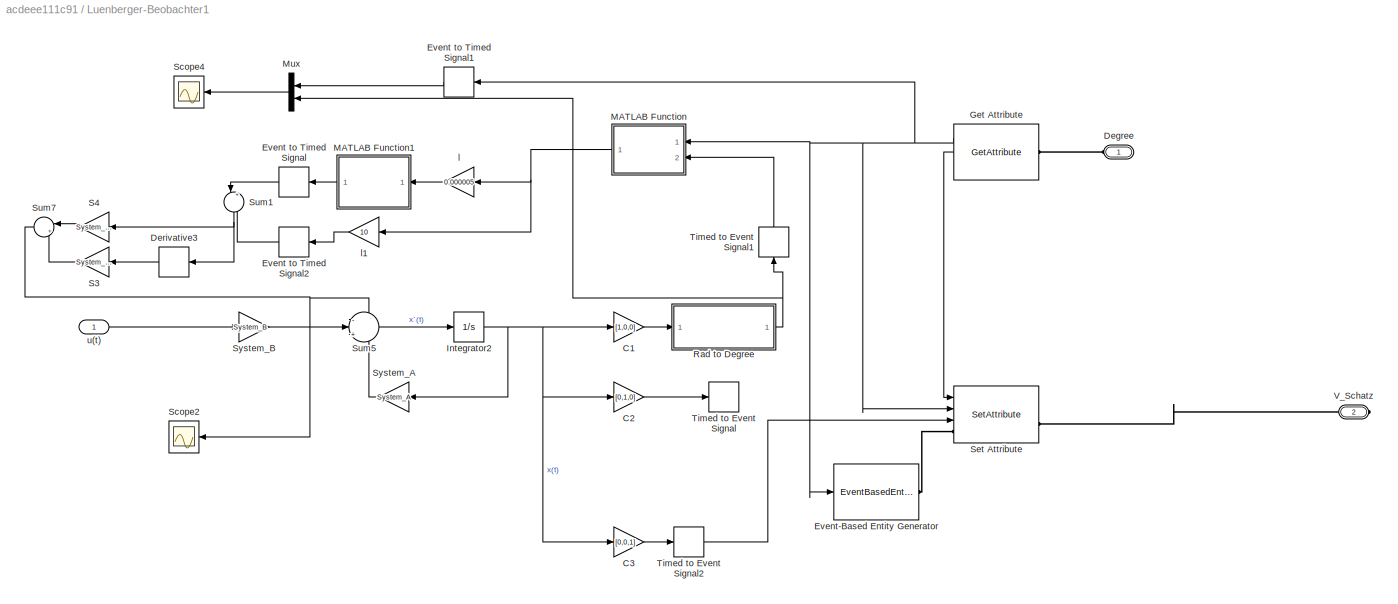
BLOCK [SubSystem] Luenberger-Beobachter1
  Ports = [1, 0, 0, 0, 0, 1, 1]
  RequestExecContextInheritance = off
BLOCK [Gain] Luenberger-Beobachter1/C1
  Gain = [1,0,0]
  Multiplication = Matrix(K*u)
  OutDataTypeStr = Inherit: Inherit via internal rule
  ParamDataTypeStr = Inherit: Inherit via internal rule
  SaturateOnIntegerOverflow = off
BLOCK [Gain] Luenberger-Beobachter1/C2
  Gain = [0,1,0]
  Multiplication = Matrix(K*u)
  OutDataTypeStr = Inherit: Inherit via internal rule
  ParamDataTypeStr = Inherit: Inherit via internal rule
  SaturateOnIntegerOverflow = off
BLOCK [Gain] Luenberger-Beobachter1/C3
  Gain = [0,0,1]
  Multiplication = Matrix(K*u)
  OutDataTypeStr = Inherit: Inherit via internal rule
  ParamDataTypeStr = Inherit: Inherit via internal rule
  SaturateOnIntegerOverflow = off
BLOCK [PMIOPort] Luenberger-Beobachter1/Degree
  Port = 1
  Side = Left
BLOCK [Derivative] Luenberger-Beobachter1/Derivative3
BLOCK [EventToTimedSignal] Luenberger-Beobachter1/Event to Timed Signal
  InputPortMap = u0
  OutputPortMap = o0
  Ports = [1, 1]
BLOCK [EventToTimedSignal] Luenberger-Beobachter1/Event to Timed Signal1
  InputPortMap = u0
  OutputPortMap = o0
  Ports = [1, 1]
BLOCK [EventToTimedSignal] Luenberger-Beobachter1/Event to Timed Signal2
  InputPortMap = u0
  OutputPortMap = o0
  Ports = [1, 1]
BLOCK [EventBasedEntityGenerator] Luenberger-Beobachter1/Event-Based Entity Generator
  InputPortMap = u0
  Ports = [1, 0, 0, 0, 0, 0, 1]
  SignalEdgeType = Either
BLOCK [GetAttribute] Luenberger-Beobachter1/Get Attribute
  AttributeDefaultValue = 1|1
  AttributeMissing = Error|Error
  AttributeName = Value|Speed
  AttributeSendTiming = After entity departure|After entity departure
  AttributeTreatAsVector = 1|1
  EvaluatedDefaultAttributeValue = { [];[]}
  OutputPortMap = o1,o2
  Ports = [0, 2, 0, 0, 0, 1, 1]
BLOCK [Integrator] Luenberger-Beobachter1/Integrator2
  Ports = [1, 1]
BLOCK [SubSystem] Luenberger-Beobachter1/MATLAB Function
  ErrorFcn = Stateflow.Translate.translate
  PermitHierarchicalResolution = ExplicitOnly
  Ports = [2, 1]
  RequestExecContextInheritance = off
  SFBlockType = MATLAB Function
  TreatAsAtomicUnit = on
BLOCK [Demux] Luenberger-Beobachter1/MATLAB Function/ Demux 
  Outputs = 1
  Ports = [1, 1]
BLOCK [S-Function] Luenberger-Beobachter1/MATLAB Function/ SFunction 
  EnableBusSupport = on
  FunctionName = sf_sfun
  PortCounts = [2 2]
  Ports = [2, 2]
  Tag = Stateflow S-Function MasterArbeit_EreignisgeneratorsNachISS 4
BLOCK [Terminator] Luenberger-Beobachter1/MATLAB Function/ Terminator 
BLOCK [Inport] Luenberger-Beobachter1/MATLAB Function/schatzvalue
  IconDisplay = Port number
  Port = 2
BLOCK [Inport] Luenberger-Beobachter1/MATLAB Function/value
  IconDisplay = Port number
BLOCK [Outport] Luenberger-Beobachter1/MATLAB Function/y
  IconDisplay = Port number
BLOCK [SubSystem] Luenberger-Beobachter1/MATLAB Function1
  ErrorFcn = Stateflow.Translate.translate
  PermitHierarchicalResolution = ExplicitOnly
  Ports = [1, 1]
  RequestExecContextInheritance = off
  SFBlockType = MATLAB Function
  TreatAsAtomicUnit = on
BLOCK [Demux] Luenberger-Beobachter1/MATLAB Function1/ Demux 
  Outputs = 1
  Ports = [1, 1]
BLOCK [S-Function] Luenberger-Beobachter1/MATLAB Function1/ SFunction 
  EnableBusSupport = on
  FunctionName = sf_sfun
  PortCounts = [1 2]
  Ports = [1, 2]
  Tag = Stateflow S-Function MasterArbeit_EreignisgeneratorsNachISS 5
BLOCK [Terminator] Luenberger-Beobachter1/MATLAB Function1/ Terminator 
BLOCK [Inport] Luenberger-Beobachter1/MATLAB Function1/u
  IconDisplay = Port number
BLOCK [Outport] Luenberger-Beobachter1/MATLAB Function1/y
  IconDisplay = Port number
BLOCK [Mux] Luenberger-Beobachter1/Mux
  DisplayOption = bar
  Inputs = 2
  Ports = [2, 1]
BLOCK [SubSystem] Luenberger-Beobachter1/Rad to Degree
  Ports = [1, 1]
  RequestExecContextInheritance = off
BLOCK [Outport] Luenberger-Beobachter1/Rad to Degree/Degree
  IconDisplay = Port number
BLOCK [Product] Luenberger-Beobachter1/Rad to Degree/Divide
  InputSameDT = off
  Inputs = */
  OutDataTypeStr = Inherit: Inherit via internal rule
  Ports = [2, 1]
  RndMeth = Floor
  SaturateOnIntegerOverflow = off
BLOCK [Gain] Luenberger-Beobachter1/Rad to Degree/Gain
  Gain = 180
  OutDataTypeStr = Inherit: Inherit via internal rule
  ParamDataTypeStr = Inherit: Inherit via internal rule
  SaturateOnIntegerOverflow = off
BLOCK [Constant] Luenberger-Beobachter1/Rad to Degree/Pi
  Value = pi
BLOCK [Inport] Luenberger-Beobachter1/Rad to Degree/Rad
  IconDisplay = Port number
BLOCK [Gain] Luenberger-Beobachter1/S3
  Gain = System_S1
  Multiplication = Matrix(K*u)
  OutDataTypeStr = Inherit: Inherit via internal rule
  ParamDataTypeStr = Inherit: Inherit via internal rule
  SaturateOnIntegerOverflow = off
BLOCK [Gain] Luenberger-Beobachter1/S4
  Gain = System_S2
  Multiplication = Matrix(K*u)
  OutDataTypeStr = Inherit: Inherit via internal rule
  ParamDataTypeStr = Inherit: Inherit via internal rule
  SaturateOnIntegerOverflow = off
BLOCK [Scope] Luenberger-Beobachter1/Scope2
  DataFormat = StructureWithTime
  Floating = off
  LimitDataPoints = off
  NumInputPorts = 1
  Ports = [1]
  SampleTime = 0
  SaveName = ScopeData15
  ShowLegends = on
  TimeRange = 10
  YMax = 275
  YMin = 0
BLOCK [Scope] Luenberger-Beobachter1/Scope4
  DataFormat = StructureWithTime
  Floating = off
  LegendLocations = 0.89679     0.93498      0.0875    0.032432
  LimitDataPoints = off
  NumInputPorts = 1
  Ports = [1]
  SampleTime = 0
  SaveName = ScopeData13
  ShowLegends = on
  TimeRange = 10
  YMax = 275
  YMin = 0
BLOCK [SetAttribute] Luenberger-Beobachter1/Set Attribute
  AttributeFrom = Signal port|Signal port|Signal port
  AttributeName = Value|Theta|Beschleunigung
  AttributeTreatAsVector = 1|1|1
  AttributeValue = 1|1|1
  EvaluatedAttributeValue = { [];[];[]}
  InputPortMap = u0,u1,u2
  OutputPortMap = o0
  Ports = [3, 1, 0, 0, 0, 1, 1]
  StatNumberDeparted = on
BLOCK [Sum] Luenberger-Beobachter1/Sum1
  IconShape = round
  InputSameDT = off
  Inputs = |++
  OutDataTypeStr = Inherit: Inherit via internal rule
  Ports = [2, 1]
  SaturateOnIntegerOverflow = off
BLOCK [Sum] Luenberger-Beobachter1/Sum5
  IconShape = round
  InputSameDT = off
  Inputs = -|+|+
  OutDataTypeStr = Inherit: Inherit via internal rule
  Ports = [3, 1]
  SaturateOnIntegerOverflow = off
BLOCK [Sum] Luenberger-Beobachter1/Sum7
  IconShape = round
  InputSameDT = off
  Inputs = |++
  OutDataTypeStr = Inherit: Inherit via internal rule
  Ports = [2, 1]
  SaturateOnIntegerOverflow = off
BLOCK [Gain] Luenberger-Beobachter1/System_A
  Gain = System_A
  Multiplication = Matrix(K*u)
  OutDataTypeStr = Inherit: Inherit via internal rule
  ParamDataTypeStr = Inherit: Inherit via internal rule
  SaturateOnIntegerOverflow = off
BLOCK [Gain] Luenberger-Beobachter1/System_B
  Gain = System_B
  Multiplication = Matrix(K*u)
  OutDataTypeStr = Inherit: Inherit via internal rule
  ParamDataTypeStr = Inherit: Inherit via internal rule
  SaturateOnIntegerOverflow = off
BLOCK [TimedToEventSignal] Luenberger-Beobachter1/Timed to Event Signal
  InputPortMap = u0
  OutputPortMap = o0
  Ports = [1, 1]
BLOCK [TimedToEventSignal] Luenberger-Beobachter1/Timed to Event Signal1
  InputPortMap = u0
  OutputPortMap = o0
  Ports = [1, 1]
BLOCK [TimedToEventSignal] Luenberger-Beobachter1/Timed to Event Signal2
  InputPortMap = u0
  OutputPortMap = o0
  Ports = [1, 1]
BLOCK [PMIOPort] Luenberger-Beobachter1/V_Schatz
  Port = 2
  Side = Right
BLOCK [Gain] Luenberger-Beobachter1/l
  Gain = 0.000005
  Multiplication = Matrix(K*u)
  OutDataTypeStr = Inherit: Inherit via internal rule
  ParamDataTypeStr = Inherit: Inherit via internal rule
  SaturateOnIntegerOverflow = off
BLOCK [Gain] Luenberger-Beobachter1/l1
  Gain = 10
  Multiplication = Matrix(K*u)
  OutDataTypeStr = Inherit: Inherit via internal rule
  ParamDataTypeStr = Inherit: Inherit via internal rule
  SaturateOnIntegerOverflow = off
BLOCK [Inport] Luenberger-Beobachter1/u(t)
  IconDisplay = Port number
BLOCK [Mux] Mux1
  DisplayOption = bar
  Inputs = 2
  Ports = [2, 1]
BLOCK [SubSystem] PID Konventional
  Ports = [2, 1]
  RequestExecContextInheritance = off
BLOCK [Gain] PID Konventional/D
  Gain = Kd
  Multiplication = Matrix(K*u)
  OutDataTypeStr = Inherit: Inherit via internal rule
  ParamDataTypeStr = Inherit: Inherit via internal rule
  SaturateOnIntegerOverflow = off
BLOCK [Derivative] PID Konventional/Derivative
BLOCK [Gain] PID Konventional/I
  Gain = Ki
  Multiplication = Matrix(K*u)
  OutDataTypeStr = Inherit: Inherit via internal rule
  ParamDataTypeStr = Inherit: Inherit via internal rule
  SaturateOnIntegerOverflow = off
BLOCK [Integrator] PID Konventional/Integrator2
  Ports = [1, 1]
BLOCK [Gain] PID Konventional/P
  Gain = Kp
  Multiplication = Matrix(K*u)
  OutDataTypeStr = Inherit: Inherit via internal rule
  ParamDataTypeStr = Inherit: Inherit via internal rule
  SaturateOnIntegerOverflow = off
BLOCK [Sum] PID Konventional/Sum1
  IconShape = round
  InputSameDT = off
  Inputs = |+-
  OutDataTypeStr = Inherit: Inherit via internal rule
  Ports = [2, 1]
  SaturateOnIntegerOverflow = off
BLOCK [Sum] PID Konventional/Sum2
  IconShape = round
  InputSameDT = off
  Inputs = +|+|+
  OutDataTypeStr = Inherit: Inherit via internal rule
  Ports = [3, 1]
  SaturateOnIntegerOverflow = off
BLOCK [Saturate] PID Konventional/U Begrenzung
  InputPortMap = u0
  LowerLimit = 0
  Ports = [1, 1]
  UpperLimit = Umax
  ZeroCross = off
BLOCK [Inport] PID Konventional/VelocityIst
  IconDisplay = Port number
  Port = 2
BLOCK [Inport] PID Konventional/VelocitySoll
  IconDisplay = Port number
BLOCK [Outport] PID Konventional/u(t)
  IconDisplay = Port number
BLOCK [SubSystem] PID Konventional1
  Ports = [2, 1]
  RequestExecContextInheritance = off
BLOCK [Gain] PID Konventional1/D
  Gain = Kd
  Multiplication = Matrix(K*u)
  OutDataTypeStr = Inherit: Inherit via internal rule
  ParamDataTypeStr = Inherit: Inherit via internal rule
  SaturateOnIntegerOverflow = off
BLOCK [Derivative] PID Konventional1/Derivative
BLOCK [Gain] PID Konventional1/I
  Gain = Ki
  Multiplication = Matrix(K*u)
  OutDataTypeStr = Inherit: Inherit via internal rule
  ParamDataTypeStr = Inherit: Inherit via internal rule
  SaturateOnIntegerOverflow = off
BLOCK [Integrator] PID Konventional1/Integrator2
  Ports = [1, 1]
BLOCK [Gain] PID Konventional1/P
  Gain = Kp
  Multiplication = Matrix(K*u)
  OutDataTypeStr = Inherit: Inherit via internal rule
  ParamDataTypeStr = Inherit: Inherit via internal rule
  SaturateOnIntegerOverflow = off
BLOCK [Sum] PID Konventional1/Sum1
  IconShape = round
  InputSameDT = off
  Inputs = |+-
  OutDataTypeStr = Inherit: Inherit via internal rule
  Ports = [2, 1]
  SaturateOnIntegerOverflow = off
BLOCK [Sum] PID Konventional1/Sum2
  IconShape = round
  InputSameDT = off
  Inputs = +|+|+
  OutDataTypeStr = Inherit: Inherit via internal rule
  Ports = [3, 1]
  SaturateOnIntegerOverflow = off
BLOCK [Saturate] PID Konventional1/U Begrenzung
  InputPortMap = u0
  LowerLimit = 0
  Ports = [1, 1]
  UpperLimit = Umax
  ZeroCross = off
BLOCK [Inport] PID Konventional1/VelocityIst
  IconDisplay = Port number
  Port = 2
BLOCK [Inport] PID Konventional1/VelocitySoll
  IconDisplay = Port number
BLOCK [Outport] PID Konventional1/u(t)
  IconDisplay = Port number
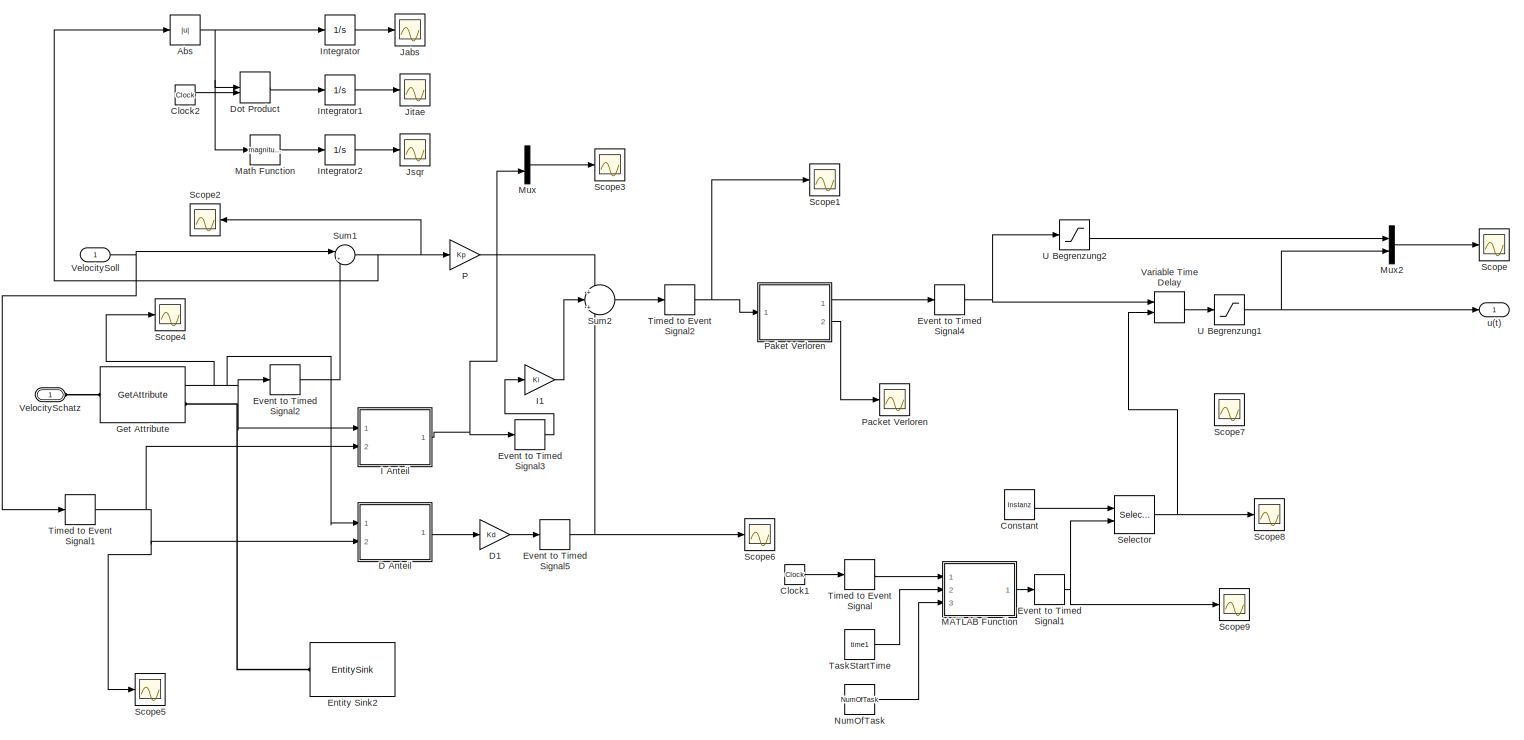
[diagram: PID Regler - part 1/2, full width, top band]
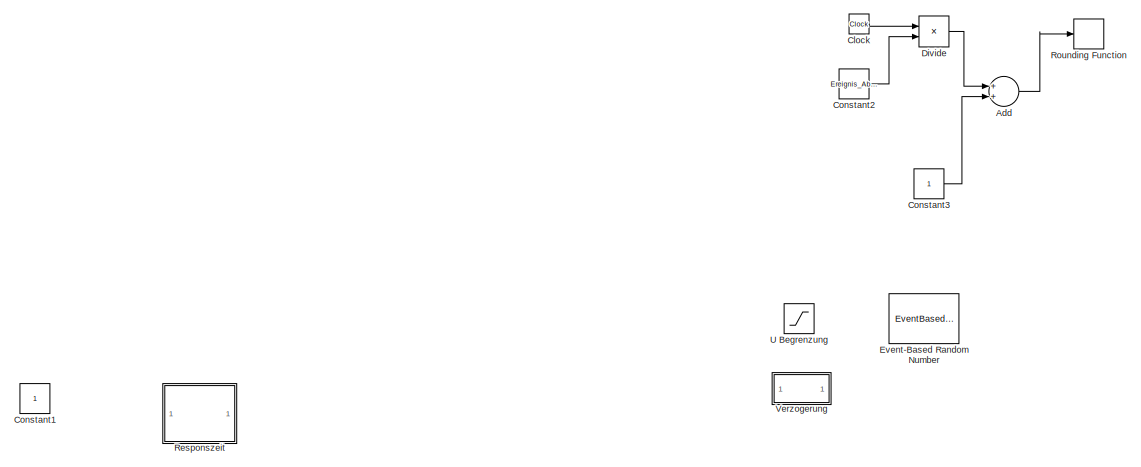
[diagram: PID Regler - part 2/2, bottom right region]
BLOCK [SubSystem] PID Regler
  Ports = [1, 1, 0, 0, 0, 1]
  RequestExecContextInheritance = off
BLOCK [Abs] PID Regler/Abs
  SaturateOnIntegerOverflow = off
BLOCK [Sum] PID Regler/Add
  InputSameDT = off
  OutDataTypeStr = Inherit: Inherit via internal rule
  Ports = [2, 1]
  SaturateOnIntegerOverflow = off
BLOCK [Clock] PID Regler/Clock
BLOCK [Clock] PID Regler/Clock1
BLOCK [Clock] PID Regler/Clock2
BLOCK [Constant] PID Regler/Constant
  Value = Instanz
BLOCK [Constant] PID Regler/Constant1
BLOCK [Constant] PID Regler/Constant2
  Value = Ereignis_Abtastzeit
BLOCK [Constant] PID Regler/Constant3
BLOCK [SubSystem] PID Regler/D Anteil
  ErrorFcn = Stateflow.Translate.translate
  PermitHierarchicalResolution = ExplicitOnly
  Ports = [2, 1]
  RequestExecContextInheritance = off
  SFBlockType = MATLAB Function
  TreatAsAtomicUnit = on
BLOCK [Demux] PID Regler/D Anteil/ Demux 
  Outputs = 1
  Ports = [1, 1]
BLOCK [S-Function] PID Regler/D Anteil/ SFunction 
  EnableBusSupport = on
  FunctionName = sf_sfun
  PortCounts = [2 2]
  Ports = [2, 2]
  Tag = Stateflow S-Function MasterArbeit_EreignisgeneratorsNachISS 3
BLOCK [Terminator] PID Regler/D Anteil/ Terminator 
BLOCK [Inport] PID Regler/D Anteil/soll
  IconDisplay = Port number
  Port = 2
BLOCK [Inport] PID Regler/D Anteil/u
  IconDisplay = Port number
BLOCK [Outport] PID Regler/D Anteil/y
  IconDisplay = Port number
BLOCK [Gain] PID Regler/D1
  Gain = Kd
  Multiplication = Matrix(K*u)
  OutDataTypeStr = Inherit: Inherit via internal rule
  ParamDataTypeStr = Inherit: Inherit via internal rule
  SaturateOnIntegerOverflow = off
BLOCK [Product] PID Regler/Divide
  InputSameDT = off
  Inputs = */
  OutDataTypeStr = Inherit: Inherit via internal rule
  Ports = [2, 1]
  RndMeth = Floor
  SaturateOnIntegerOverflow = off
BLOCK [DotProduct] PID Regler/Dot Product
  OutDataTypeStr = Inherit: Inherit via internal rule
BLOCK [EntitySink] PID Regler/Entity Sink2
  Ports = [0, 0, 0, 0, 0, 1]
BLOCK [EventToTimedSignal] PID Regler/Event to Timed Signal1
  InputPortMap = u0
  OutputPortMap = o0
  Ports = [1, 1]
BLOCK [EventToTimedSignal] PID Regler/Event to Timed Signal2
  InputPortMap = u0
  OutputPortMap = o0
  Ports = [1, 1]
BLOCK [EventToTimedSignal] PID Regler/Event to Timed Signal3
  InputPortMap = u0
  OutputPortMap = o0
  Ports = [1, 1]
BLOCK [EventToTimedSignal] PID Regler/Event to Timed Signal4
  InputPortMap = u0
  OutputPortMap = o0
  Ports = [1, 1]
BLOCK [EventToTimedSignal] PID Regler/Event to Timed Signal5
  InputPortMap = u0
  OutputPortMap = o0
  Ports = [1, 1]
BLOCK [EventBasedRandomNumber] PID Regler/Event-Based Random Number
  Distribution = Uniform
  OutputPortMap = o0
  Ports = [0, 1]
  Seed = 20361
  maxUnif = 0.5
  meanPoiss = 0.5
  minUnif = 0.1
  stdNorm = 0.1
BLOCK [GetAttribute] PID Regler/Get Attribute
  AttributeName = Value
  EvaluatedDefaultAttributeValue = { []}
  OutputPortMap = o1
  Ports = [0, 1, 0, 0, 0, 1, 1]
BLOCK [SubSystem] PID Regler/I Anteil
  ErrorFcn = Stateflow.Translate.translate
  PermitHierarchicalResolution = ExplicitOnly
  Ports = [2, 1]
  RequestExecContextInheritance = off
  SFBlockType = MATLAB Function
  TreatAsAtomicUnit = on
BLOCK [Demux] PID Regler/I Anteil/ Demux 
  Outputs = 1
  Ports = [1, 1]
BLOCK [S-Function] PID Regler/I Anteil/ SFunction 
  EnableBusSupport = on
  FunctionName = sf_sfun
  PortCounts = [2 2]
  Ports = [2, 2]
  Tag = Stateflow S-Function MasterArbeit_EreignisgeneratorsNachISS 2
BLOCK [Terminator] PID Regler/I Anteil/ Terminator 
BLOCK [Inport] PID Regler/I Anteil/soll
  IconDisplay = Port number
  Port = 2
BLOCK [Inport] PID Regler/I Anteil/u
  IconDisplay = Port number
BLOCK [Outport] PID Regler/I Anteil/y
  IconDisplay = Port number
BLOCK [Gain] PID Regler/I1
  Gain = Ki
  Multiplication = Matrix(K*u)
  OutDataTypeStr = Inherit: Inherit via internal rule
  ParamDataTypeStr = Inherit: Inherit via internal rule
  SaturateOnIntegerOverflow = off
BLOCK [Integrator] PID Regler/Integrator
  Ports = [1, 1]
BLOCK [Integrator] PID Regler/Integrator1
  Ports = [1, 1]
BLOCK [Integrator] PID Regler/Integrator2
  Ports = [1, 1]
BLOCK [Scope] PID Regler/Jabs
  DataFormat = StructureWithTime
  Floating = off
  LimitDataPoints = off
  NumInputPorts = 1
  Ports = [1]
  SampleTime = 0
  SaveName = Jabs
  SaveToWorkspace = on
  ShowLegends = off
  TimeRange = 10
  YMax = 10
  YMin = 7.5
BLOCK [Scope] PID Regler/Jitae
  DataFormat = StructureWithTime
  Floating = off
  LimitDataPoints = off
  NumInputPorts = 1
  Ports = [1]
  SampleTime = 0
  SaveName = Jitae
  SaveToWorkspace = on
  ShowLegends = off
  TimeRange = 10
  YMax = 10
  YMin = 7.5
BLOCK [Scope] PID Regler/Jsqr
  DataFormat = StructureWithTime
  Floating = off
  LimitDataPoints = off
  NumInputPorts = 1
  Ports = [1]
  SampleTime = 0
  SaveName = Jsqr
  SaveToWorkspace = on
  ShowLegends = off
  TimeRange = 10
  YMax = 10
  YMin = 7.5
BLOCK [SubSystem] PID Regler/MATLAB Function
  ErrorFcn = Stateflow.Translate.translate
  PermitHierarchicalResolution = ExplicitOnly
  Ports = [3, 1]
  RequestExecContextInheritance = off
  SFBlockType = MATLAB Function
  TreatAsAtomicUnit = on
BLOCK [Demux] PID Regler/MATLAB Function/ Demux 
  Outputs = 1
  Ports = [1, 1]
BLOCK [S-Function] PID Regler/MATLAB Function/ SFunction 
  EnableBusSupport = on
  FunctionName = sf_sfun
  PortCounts = [3 2]
  Ports = [3, 2]
  Tag = Stateflow S-Function MasterArbeit_EreignisgeneratorsNachISS 10
BLOCK [Terminator] PID Regler/MATLAB Function/ Terminator 
BLOCK [Inport] PID Regler/MATLAB Function/NumOfTask
  IconDisplay = Port number
  Port = 3
BLOCK [Inport] PID Regler/MATLAB Function/time
  IconDisplay = Port number
  Port = 2
BLOCK [Inport] PID Regler/MATLAB Function/u
  IconDisplay = Port number
BLOCK [Outport] PID Regler/MATLAB Function/y
  IconDisplay = Port number
BLOCK [Math] PID Regler/Math Function
  Operator = magnitude^2
  Ports = [1, 1]
BLOCK [Mux] PID Regler/Mux
  DisplayOption = bar
  Inputs = 2
  Ports = [2, 1]
BLOCK [Mux] PID Regler/Mux2
  DisplayOption = bar
  Inputs = 2
  Ports = [2, 1]
BLOCK [Constant] PID Regler/NumOfTask
  Value = NumOfTask
BLOCK [Gain] PID Regler/P
  Gain = Kp
  Multiplication = Matrix(K*u)
  OutDataTypeStr = Inherit: Inherit via internal rule
  ParamDataTypeStr = Inherit: Inherit via internal rule
  SaturateOnIntegerOverflow = off
BLOCK [Scope] PID Regler/Packet Verloren
  DataFormat = StructureWithTime
  Floating = off
  LimitDataPoints = off
  NumInputPorts = 1
  Ports = [1]
  SampleTime = 0
  SaveName = ScopeData7
  ShowLegends = off
  ZoomMode = yonly
BLOCK [SubSystem] PID Regler/Paket Verloren
  ErrorFcn = Stateflow.Translate.translate
  PermitHierarchicalResolution = ExplicitOnly
  Ports = [1, 2]
  RequestExecContextInheritance = off
  SFBlockType = MATLAB Function
  TreatAsAtomicUnit = on
BLOCK [Demux] PID Regler/Paket Verloren/ Demux 
  Outputs = 1
  Ports = [1, 1]
BLOCK [S-Function] PID Regler/Paket Verloren/ SFunction 
  EnableBusSupport = on
  FunctionName = sf_sfun
  PortCounts = [1 3]
  Ports = [1, 3]
  Tag = Stateflow S-Function MasterArbeit_EreignisgeneratorsNachISS 1
BLOCK [Terminator] PID Regler/Paket Verloren/ Terminator 
BLOCK [Outport] PID Regler/Paket Verloren/PaketVerloren
  IconDisplay = Port number
  Port = 2
BLOCK [Inport] PID Regler/Paket Verloren/u
  IconDisplay = Port number
BLOCK [Outport] PID Regler/Paket Verloren/y
  IconDisplay = Port number
BLOCK [SubSystem] PID Regler/Responszeit
  ErrorFcn = Stateflow.Translate.translate
  PermitHierarchicalResolution = ExplicitOnly
  Ports = [1, 1]
  RequestExecContextInheritance = off
  SFBlockType = MATLAB Function
  TreatAsAtomicUnit = on
BLOCK [Demux] PID Regler/Responszeit/ Demux 
  Outputs = 1
  Ports = [1, 1]
BLOCK [S-Function] PID Regler/Responszeit/ SFunction 
  EnableBusSupport = on
  FunctionName = sf_sfun
  PortCounts = [1 2]
  Ports = [1, 2]
  Tag = Stateflow S-Function MasterArbeit_EreignisgeneratorsNachISS 8
BLOCK [Terminator] PID Regler/Responszeit/ Terminator 
BLOCK [Inport] PID Regler/Responszeit/Time
  IconDisplay = Port number
BLOCK [Outport] PID Regler/Responszeit/y
  IconDisplay = Port number
BLOCK [Rounding] PID Regler/Rounding Function
BLOCK [Scope] PID Regler/Scope
  DataFormat = StructureWithTime
  Floating = off
  LegendLocations = 0.90482     0.92911    0.068966    0.035363
  LimitDataPoints = off
  NumInputPorts = 1
  Ports = [1]
  SampleTime = 0
  ShowLegends = on
  TimeRange = 4.131253362022592
  YMax = 157.564
  YMin = 142.558
BLOCK [Scope] PID Regler/Scope1
  DataFormat = StructureWithTime
  Floating = off
  LimitDataPoints = off
  NumInputPorts = 1
  Ports = [1]
  SampleTime = 0
  SaveName = ScopeData6
  ShowLegends = off
  TimeRange = 80
  YMax = 22
  YMin = 2
BLOCK [Scope] PID Regler/Scope2
  DataFormat = StructureWithTime
  Floating = off
  LimitDataPoints = off
  NumInputPorts = 1
  Ports = [1]
  SampleTime = 0
  SaveName = ScopeData9
  ShowLegends = off
BLOCK [Scope] PID Regler/Scope3
  DataFormat = StructureWithTime
  Floating = off
  LimitDataPoints = off
  NumInputPorts = 1
  Ports = [1]
  SampleTime = 0
  SaveName = ScopeData10
  ShowLegends = off
  TimeRange = 10
  YMax = 10
  YMin = 7.5
BLOCK [Scope] PID Regler/Scope4
  DataFormat = StructureWithTime
  Floating = off
  LimitDataPoints = off
  NumInputPorts = 1
  Ports = [1]
  SampleTime = 0
  SaveName = ScopeData12
  ShowLegends = off
  TimeRange = 10
  YMax = 10
  YMin = 7.5
BLOCK [Scope] PID Regler/Scope5
  DataFormat = StructureWithTime
  Floating = off
  LimitDataPoints = off
  NumInputPorts = 1
  Ports = [1]
  SampleTime = 0
  SaveName = ScopeData5
  ShowLegends = off
  TimeRange = 10
  YMax = 10
  YMin = 7.5
BLOCK [Scope] PID Regler/Scope6
  DataFormat = StructureWithTime
  Floating = off
  LimitDataPoints = off
  NumInputPorts = 1
  Ports = [1]
  SampleTime = 0
  SaveName = ScopeData8
  ShowLegends = on
  TimeRange = 10
  YMax = 10
  YMin = 7.5
BLOCK [Scope] PID Regler/Scope7
  DataFormat = StructureWithTime
  Floating = off
  LimitDataPoints = off
  NumInputPorts = 1
  Ports = [1]
  SampleTime = 0
  SaveName = Delay
  SaveToWorkspace = on
  ShowLegends = off
BLOCK [Scope] PID Regler/Scope8
  DataFormat = StructureWithTime
  Floating = off
  LegendLocations = 0.90663     0.91947    0.071219    0.028478
  LimitDataPoints = off
  NumInputPorts = 1
  Ports = [1]
  SampleTime = 0
  SaveName = ScopeData17
  ShowLegends = on
  TimeRange = 450
  YMax = 6
  YMin = 2
  ZoomMode = yonly
BLOCK [Scope] PID Regler/Scope9
  DataFormat = StructureWithTime
  Floating = off
  LegendLocations = 0.8545     0.92087     0.12335    0.028478
  LimitDataPoints = off
  NumInputPorts = 1
  Ports = [1]
  SampleTime = 0
  SaveName = ScopeData20
  ShowLegends = on
  TimeRange = 4.131253362022592
  YMax = 16.67313288069835
  YMin = 13.68574199806013
  ZoomMode = yonly
BLOCK [Selector] PID Regler/Selector
  IndexOptions = Index vector (port)
  Indices = [1 3]
  InputPortWidth = NumOfTask
  Ports = [2, 1]
BLOCK [Sum] PID Regler/Sum1
  IconShape = round
  InputSameDT = off
  Inputs = |+-
  OutDataTypeStr = Inherit: Inherit via internal rule
  Ports = [2, 1]
  SaturateOnIntegerOverflow = off
BLOCK [Sum] PID Regler/Sum2
  IconShape = round
  InputSameDT = off
  Inputs = +|+|+
  OutDataTypeStr = Inherit: Inherit via internal rule
  Ports = [3, 1]
  SaturateOnIntegerOverflow = off
BLOCK [Constant] PID Regler/TaskStartTime
  Value = time1
BLOCK [TimedToEventSignal] PID Regler/Timed to Event Signal
  InputPortMap = u0
  OutputPortMap = o0
  Ports = [1, 1]
BLOCK [TimedToEventSignal] PID Regler/Timed to Event Signal1
  InputPortMap = u0
  OutputPortMap = o0
  Ports = [1, 1]
BLOCK [TimedToEventSignal] PID Regler/Timed to Event Signal2
  InputPortMap = u0
  OutputPortMap = o0
  Ports = [1, 1]
BLOCK [Saturate] PID Regler/U Begrenzung
  InputPortMap = u0
  LowerLimit = 0
  Ports = [1, 1]
  UpperLimit = Umax
  ZeroCross = off
BLOCK [Saturate] PID Regler/U Begrenzung1
  InputPortMap = u0
  LowerLimit = 0
  Ports = [1, 1]
  UpperLimit = Umax
  ZeroCross = off
BLOCK [Saturate] PID Regler/U Begrenzung2
  InputPortMap = u0
  LowerLimit = 0
  Ports = [1, 1]
  UpperLimit = Umax
  ZeroCross = off
BLOCK [VariableTransportDelay] PID Regler/Variable Time Delay
  MaximumDelay = 20
  Ports = [2, 1]
  VariableDelayType = Variable transport delay
BLOCK [PMIOPort] PID Regler/VelocitySchatz
  Port = 1
  Side = Left
BLOCK [Inport] PID Regler/VelocitySoll
  IconDisplay = Port number
BLOCK [SubSystem] PID Regler/Verzogerung
  Ports = [1, 1]
  RequestExecContextInheritance = off
BLOCK [EntitySink] PID Regler/Verzogerung/Entity Sink
  Ports = [0, 0, 0, 0, 0, 1]
BLOCK [EventToTimedSignal] PID Regler/Verzogerung/Event to Timed Signal
  InputPortMap = u0
  OutputPortMap = o0
  Ports = [1, 1]
BLOCK [EventBasedRandomNumber] PID Regler/Verzogerung/Event-Based Random Number
  Distribution = Uniform
  OutputPortMap = o0
  Ports = [0, 1]
  Seed = 20361
  maxUnif = 0.5
  meanPoiss = 0.5
  minUnif = 0.1
  stdNorm = 0.1
BLOCK [GetAttribute] PID Regler/Verzogerung/Get Attribute
  AttributeName = Value
  EvaluatedDefaultAttributeValue = { []}
  OutputPortMap = o1
  Ports = [0, 1, 0, 0, 0, 1, 1]
BLOCK [Inport] PID Regler/Verzogerung/In1
  IconDisplay = Port number
BLOCK [NServer] PID Regler/Verzogerung/N-Server
  InputPortMap = u0
  NumberOfServers = 10
  OutputPortMap = o0
  Ports = [1, 1, 0, 0, 0, 1, 1]
  ServiceTimeFrom = Signal port t
  StatNumberDeparted = on
BLOCK [Outport] PID Regler/Verzogerung/Out1
  IconDisplay = Port number
BLOCK [SetAttribute] PID Regler/Verzogerung/Set Attribute
  AttributeFrom = Signal port
  AttributeName = Value
  EvaluatedAttributeValue = { []}
  InputPortMap = u0
  Ports = [1, 0, 0, 0, 0, 1, 1]
BLOCK [TimeBasedEntityGenerator] PID Regler/Verzogerung/Time-Based Entity Generator
  GenerateEntityAtSimulationStart = off
  Ports = [0, 0, 0, 0, 0, 0, 1]
BLOCK [TimedToEventSignal] PID Regler/Verzogerung/Timed to Event Signal
  InputPortMap = u0
  OutputPortMap = o0
  Ports = [1, 1]
BLOCK [Outport] PID Regler/u(t)
  IconDisplay = Port number
BLOCK [Scope] RealSystemkDrehzahl
  DataFormat = StructureWithTime
  Floating = off
  LimitDataPoints = off
  NumInputPorts = 1
  Ports = [1]
  SampleTime = 0
  SaveName = RealSystemDrehzahl
  SaveToWorkspace = on
  ShowLegends = on
  TimeRange = 24
  YMax = 15.78380634390651
  YMin = 9.783806343906511
BLOCK [Scope] SollVelocity
  DataFormat = StructureWithTime
  Floating = off
  LimitDataPoints = off
  NumInputPorts = 1
  Ports = [1]
  SampleTime = 0
  SaveName = ScopeData1
  ShowLegends = on
  TimeRange = 0.0001972721074048334
  YMax = -2.730597520382321
  YMin = -4.75631690384965
BLOCK [Step] SollgTheta
  After = 5000
  SampleTime = 0
  Time = 0
BLOCK [Step] Sollgeschwindigkeit
  After = 10
  SampleTime = 0
  Time = 0
BLOCK [Scope] SpannungVergleich
  DataFormat = StructureWithTime
  Floating = off
  LegendLocations = 0.87377     0.89753     0.10398     0.05042
  LimitDataPoints = off
  NumInputPorts = 1
  Ports = [1]
  SampleTime = 0
  SaveName = ScopeData4
  ShowLegends = on
  TimeRange = 0.0001972721074048334
  YMax = -2.730597520382321
  YMin = -4.75631690384965
BLOCK [Step] Step
  After = 0
  SampleTime = 0
  Time = 10
BLOCK [Step] Step1
  After = sollwert
  SampleTime = 0
  Time = 0
BLOCK [Step] Step2
  After = 0.1
  SampleTime = 0
  Time = 80
BLOCK [Step] Step3
  After = 5
  SampleTime = 0
  Time = 10
BLOCK [Step] Step4
  After = 3
  SampleTime = 0
  Time = 100
BLOCK [Sum] Sum1
  IconShape = round
  InputSameDT = off
  Inputs = |++
  OutDataTypeStr = Inherit: Inherit via internal rule
  Ports = [2, 1]
  SaturateOnIntegerOverflow = off
BLOCK [Sum] Sum2
  IconShape = round
  InputSameDT = off
  Inputs = +|+|+
  OutDataTypeStr = Inherit: Inherit via internal rule
  Ports = [3, 1]
  SaturateOnIntegerOverflow = off
BLOCK [SubSystem] Verzörgerung
  Ports = [0, 0, 0, 0, 0, 1, 1]
  RequestExecContextInheritance = off
BLOCK [EventBasedRandomNumber] Verzörgerung/Event-Based Random Number
  Distribution = Uniform
  OutputPortMap = o0
  Ports = [0, 1]
  Seed = 34567
  maxUnif = 0
  stdNorm = 0.1
BLOCK [PMIOPort] Verzörgerung/Input
  Port = 1
  Side = Left
BLOCK [NServer] Verzörgerung/N-Server
  InputPortMap = u0
  NumberOfServers = 1
  Ports = [1, 0, 0, 0, 0, 1, 1]
  ServiceTimeFrom = Signal port t
BLOCK [PMIOPort] Verzörgerung/V_Schatz
  Port = 2
  Side = Right
BLOCK [Gain] Vorfilter1
  Gain = V
  OutDataTypeStr = Inherit: Inherit via internal rule
  ParamDataTypeStr = Inherit: Inherit via internal rule
  SaturateOnIntegerOverflow = off
LINE Add:1 -> GleichstromMotorModel:1
NET Encoder/Get Attribute:1 -> Encoder/Event-Based Entity Generator:1, Encoder/Scope1:1
LINE Encoder/Get Attribute:2 -> Encoder/Set Attribute:2
NET Encoder/Get Attribute:3 -> Encoder/Scope2:1, Encoder/Set Attribute:1
LINE Encoder/Set Attribute:1 -> Encoder/Scope:1
LINE Ereignisgeneartor(torleranz)/Degree:1 -> Ereignisgeneartor(torleranz)/Timed to Event Signal:1
LINE Ereignisgeneartor(torleranz)/Speed:1 -> Ereignisgeneartor(torleranz)/Timed to Event Signal1:1
NET Ereignisgeneartor(torleranz)/Threadhold/Abs:1 -> Ereignisgeneartor(torleranz)/Threadhold/Data Type Conversion:1, Ereignisgeneartor(torleranz)/Threadhold/Zustand:1
LINE Ereignisgeneartor(torleranz)/Threadhold/Constant:1 -> Ereignisgeneartor(torleranz)/Threadhold/Subtract:2
LINE Ereignisgeneartor(torleranz)/Threadhold/Data Type Conversion:1 -> Ereignisgeneartor(torleranz)/Threadhold/en:1
NET Ereignisgeneartor(torleranz)/Threadhold/Subtract:1 -> Ereignisgeneartor(torleranz)/Threadhold/Abs:1, Ereignisgeneartor(torleranz)/Threadhold/Zustand1:1
LINE Ereignisgeneartor(torleranz)/Threadhold/x(t):1 -> Ereignisgeneartor(torleranz)/Threadhold/Subtract:1
LINE Ereignisgeneartor(torleranz)/Threadhold:1 -> Ereignisgeneartor(torleranz)/Enabled Gate:1
NET Ereignisgeneartor(torleranz)/Timed to Event Signal1:1 -> Ereignisgeneartor(torleranz)/Set Attribute:2, Ereignisgeneartor(torleranz)/Threadhold:1
LINE Ereignisgeneartor(torleranz)/Timed to Event Signal:1 -> Ereignisgeneartor(torleranz)/Set Attribute:1
NET Ereignisgeneartor/Add:1 -> Ereignisgeneartor/Entscheidung_ISS2:1, Ereignisgeneartor/Scope3:1
LINE Ereignisgeneartor/Data Type Conversion:1 -> Ereignisgeneartor/Enabled Gate1:1
LINE Ereignisgeneartor/Degree:1 -> Ereignisgeneartor/Timed to Event Signal:1
LINE Ereignisgeneartor/Enabled Gate:1 -> Ereignisgeneartor/Scope1:1
LINE Ereignisgeneartor/Entscheidung_ISS2:1 -> Ereignisgeneartor/Data Type Conversion:1
LINE Ereignisgeneartor/Output Switch1:1 -> Ereignisgeneartor/Scope2:1
LINE Ereignisgeneartor/Set Attribute:1 -> Ereignisgeneartor/Scope:1
LINE Ereignisgeneartor/Speed:1 -> Ereignisgeneartor/Timed to Event Signal1:1
NET Ereignisgeneartor/Threadhold_Interupt/Compare To Constant:1 -> Ereignisgeneartor/Threadhold_Interupt/Data Type Conversion:1, Ereignisgeneartor/Threadhold_Interupt/Zustand:1
LINE Ereignisgeneartor/Threadhold_Interupt/Constant:1 -> Ereignisgeneartor/Threadhold_Interupt/Math Function:2
LINE Ereignisgeneartor/Threadhold_Interupt/Data Type Conversion:1 -> Ereignisgeneartor/Threadhold_Interupt/en:1
NET Ereignisgeneartor/Threadhold_Interupt/Math Function:1 -> Ereignisgeneartor/Threadhold_Interupt/Compare To Constant:1, Ereignisgeneartor/Threadhold_Interupt/Zustand1:1
LINE Ereignisgeneartor/Threadhold_Interupt/x(t):1 -> Ereignisgeneartor/Threadhold_Interupt/Math Function:1
LINE Ereignisgeneartor/Threadhold_TaskGenerator/Clock1:1 -> Ereignisgeneartor/Threadhold_TaskGenerator/Timed to Event Signal1:1
LINE Ereignisgeneartor/Threadhold_TaskGenerator/Clock:1 -> Ereignisgeneartor/Threadhold_TaskGenerator/Timed to Event Signal:1
LINE Ereignisgeneartor/Threadhold_TaskGenerator/Constant1:1 -> Ereignisgeneartor/Threadhold_TaskGenerator/Math Function1:2
NET Ereignisgeneartor/Threadhold_TaskGenerator/Data Type Conversion:1 -> Ereignisgeneartor/Threadhold_TaskGenerator/Zustand:1, Ereignisgeneartor/Threadhold_TaskGenerator/en:1
LINE Ereignisgeneartor/Threadhold_TaskGenerator/Event to Timed Signal:1 -> Ereignisgeneartor/Threadhold_TaskGenerator/Selector:2
LINE Ereignisgeneartor/Threadhold_TaskGenerator/MATLAB Function:1 -> Ereignisgeneartor/Threadhold_TaskGenerator/Data Type Conversion:1
LINE Ereignisgeneartor/Threadhold_TaskGenerator/NumOfTask:1 -> Ereignisgeneartor/Threadhold_TaskGenerator/MATLAB Function:3
LINE Ereignisgeneartor/Threadhold_TaskGenerator/TaskStartTime:1 -> Ereignisgeneartor/Threadhold_TaskGenerator/MATLAB Function:2
LINE Ereignisgeneartor/Threadhold_TaskGenerator/Timed to Event Signal1:1 -> Ereignisgeneartor/Threadhold_TaskGenerator/Math Function1:1
LINE Ereignisgeneartor/Threadhold_TaskGenerator/Timed to Event Signal:1 -> Ereignisgeneartor/Threadhold_TaskGenerator/MATLAB Function:1
LINE Ereignisgeneartor/Threadhold_TaskGenerator:1 -> Ereignisgeneartor/Enabled Gate:1
NET Ereignisgeneartor/Timed to Event Signal1:1 -> Ereignisgeneartor/Add:2, Ereignisgeneartor/Set Attribute:2
LINE Ereignisgeneartor/Timed to Event Signal2:1 -> Ereignisgeneartor/Add:1
LINE Ereignisgeneartor/Timed to Event Signal:1 -> Ereignisgeneartor/Set Attribute:1
LINE Ereignisgeneartor/Totzone_Wert1:1 -> Ereignisgeneartor/Entscheidung_Totzone1:2
LINE Ereignisgeneartor/VelocitySoll:1 -> Ereignisgeneartor/Timed to Event Signal2:1
LINE Ereignisgeneartor/rho2:1 -> Ereignisgeneartor/Entscheidung_ISS2:2
LINE GleichstromMotor/Add:1 -> GleichstromMotor/Integrator2:1
LINE GleichstromMotor/C1:1 -> GleichstromMotor/Rad to Degree:1
LINE GleichstromMotor/C2:1 -> GleichstromMotor/Speed:1
LINE GleichstromMotor/Derivative3:1 -> GleichstromMotor/S3:1
LINE GleichstromMotor/Integrator2:1 -> GleichstromMotor/x(t) Begrenzung:1
NET GleichstromMotor/LastMoment:1 -> GleichstromMotor/Derivative3:1, GleichstromMotor/S4:1
LINE GleichstromMotor/Rad to Degree/Divide:1 -> GleichstromMotor/Rad to Degree/Gain:1
LINE GleichstromMotor/Rad to Degree/Gain:1 -> GleichstromMotor/Rad to Degree/Rounding Function1:1
LINE GleichstromMotor/Rad to Degree/Pi:1 -> GleichstromMotor/Rad to Degree/Divide:2
LINE GleichstromMotor/Rad to Degree/Rad:1 -> GleichstromMotor/Rad to Degree/Divide:1
LINE GleichstromMotor/Rad to Degree/Rounding Function1:1 -> GleichstromMotor/Rad to Degree/U Begrenzung:1
LINE GleichstromMotor/Rad to Degree/U Begrenzung:1 -> GleichstromMotor/Rad to Degree/Degree:1
LINE GleichstromMotor/Rad to Degree:1 -> GleichstromMotor/Degree:1
LINE GleichstromMotor/S3:1 -> GleichstromMotor/Sum7:2
LINE GleichstromMotor/S4:1 -> GleichstromMotor/Sum7:1
LINE GleichstromMotor/Sum7:1 -> GleichstromMotor/Add:3
LINE GleichstromMotor/System_A:1 -> GleichstromMotor/Add:2
LINE GleichstromMotor/System_B:1 -> GleichstromMotor/Add:1
LINE GleichstromMotor/u(t):1 -> GleichstromMotor/System_B:1
NET GleichstromMotor/x(t) Begrenzung:1 -> GleichstromMotor/C1:1, GleichstromMotor/C2:1, GleichstromMotor/System_A:1
LINE GleichstromMotor1/C2:1 -> GleichstromMotor1/Theta':1
LINE GleichstromMotor1/C3:1 -> GleichstromMotor1/Theta'':1
LINE GleichstromMotor1/Derivative3:1 -> GleichstromMotor1/S3:1
LINE GleichstromMotor1/Integrator2:1 -> GleichstromMotor1/x(t) Begrenzung:1
NET GleichstromMotor1/LastMoment:1 -> GleichstromMotor1/Derivative3:1, GleichstromMotor1/S4:1
LINE GleichstromMotor1/Rad to Degree/Divide:1 -> GleichstromMotor1/Rad to Degree/Gain:1
LINE GleichstromMotor1/Rad to Degree/Gain:1 -> GleichstromMotor1/Rad to Degree/Degree:1
LINE GleichstromMotor1/Rad to Degree/Pi:1 -> GleichstromMotor1/Rad to Degree/Divide:2
LINE GleichstromMotor1/Rad to Degree/Rad:1 -> GleichstromMotor1/Rad to Degree/Divide:1
LINE GleichstromMotor1/Rad to Degree:1 -> GleichstromMotor1/Theta:1
LINE GleichstromMotor1/S3:1 -> GleichstromMotor1/Sum7:2
LINE GleichstromMotor1/S4:1 -> GleichstromMotor1/Sum7:1
LINE GleichstromMotor1/Sum5:1 -> GleichstromMotor1/Integrator2:1
LINE GleichstromMotor1/Sum7:1 -> GleichstromMotor1/Sum5:3
LINE GleichstromMotor1/System_A:1 -> GleichstromMotor1/Sum5:2
LINE GleichstromMotor1/System_B:1 -> GleichstromMotor1/Sum5:1
LINE GleichstromMotor1/System_C:1 -> GleichstromMotor1/Rad to Degree:1
LINE GleichstromMotor1/u(t):1 -> GleichstromMotor1/System_B:1
NET GleichstromMotor1/x(t) Begrenzung:1 -> GleichstromMotor1/C2:1, GleichstromMotor1/C3:1, GleichstromMotor1/System_A:1, GleichstromMotor1/System_C:1
LINE GleichstromMotor1:2 -> PID Konventional:2
LINE GleichstromMotor2/Add:1 -> GleichstromMotor2/Integrator2:1
LINE GleichstromMotor2/C1:1 -> GleichstromMotor2/Rad to Degree:1
LINE GleichstromMotor2/C2:1 -> GleichstromMotor2/Speed:1
LINE GleichstromMotor2/Derivative3:1 -> GleichstromMotor2/S3:1
LINE GleichstromMotor2/Integrator2:1 -> GleichstromMotor2/x(t) Begrenzung:1
NET GleichstromMotor2/LastMoment:1 -> GleichstromMotor2/Derivative3:1, GleichstromMotor2/S4:1
LINE GleichstromMotor2/Rad to Degree/Divide:1 -> GleichstromMotor2/Rad to Degree/Gain:1
LINE GleichstromMotor2/Rad to Degree/Gain:1 -> GleichstromMotor2/Rad to Degree/Rounding Function1:1
LINE GleichstromMotor2/Rad to Degree/Pi:1 -> GleichstromMotor2/Rad to Degree/Divide:2
LINE GleichstromMotor2/Rad to Degree/Rad:1 -> GleichstromMotor2/Rad to Degree/Divide:1
LINE GleichstromMotor2/Rad to Degree/Rounding Function1:1 -> GleichstromMotor2/Rad to Degree/U Begrenzung:1
LINE GleichstromMotor2/Rad to Degree/U Begrenzung:1 -> GleichstromMotor2/Rad to Degree/Degree:1
LINE GleichstromMotor2/Rad to Degree:1 -> GleichstromMotor2/Degree:1
LINE GleichstromMotor2/S3:1 -> GleichstromMotor2/Sum7:2
LINE GleichstromMotor2/S4:1 -> GleichstromMotor2/Sum7:1
LINE GleichstromMotor2/Sum7:1 -> GleichstromMotor2/Add:3
LINE GleichstromMotor2/System_A:1 -> GleichstromMotor2/Add:2
LINE GleichstromMotor2/System_B:1 -> GleichstromMotor2/Add:1
LINE GleichstromMotor2/u(t):1 -> GleichstromMotor2/System_B:1
NET GleichstromMotor2/x(t) Begrenzung:1 -> GleichstromMotor2/C1:1, GleichstromMotor2/C2:1, GleichstromMotor2/System_A:1
LINE GleichstromMotor:1 -> Ereignisgeneartor:1
NET GleichstromMotor:2 -> DrehzahlVergleich:1, Ereignisgeneartor:2, RealSystemkDrehzahl:1
LINE GleichstromMotorModel/C2:1 -> GleichstromMotorModel/Theta':1
LINE GleichstromMotorModel/C3:1 -> GleichstromMotorModel/Theta'':1
LINE GleichstromMotorModel/Derivative3:1 -> GleichstromMotorModel/S3:1
LINE GleichstromMotorModel/Integrator2:1 -> GleichstromMotorModel/x(t) Begrenzung:1
NET GleichstromMotorModel/LastMoment:1 -> GleichstromMotorModel/Derivative3:1, GleichstromMotorModel/S4:1
LINE GleichstromMotorModel/Rad to Degree/Divide:1 -> GleichstromMotorModel/Rad to Degree/Gain:1
LINE GleichstromMotorModel/Rad to Degree/Gain:1 -> GleichstromMotorModel/Rad to Degree/Degree:1
LINE GleichstromMotorModel/Rad to Degree/Pi:1 -> GleichstromMotorModel/Rad to Degree/Divide:2
LINE GleichstromMotorModel/Rad to Degree/Rad:1 -> GleichstromMotorModel/Rad to Degree/Divide:1
LINE GleichstromMotorModel/Rad to Degree:1 -> GleichstromMotorModel/Theta:1
LINE GleichstromMotorModel/S3:1 -> GleichstromMotorModel/Sum7:2
LINE GleichstromMotorModel/S4:1 -> GleichstromMotorModel/Sum7:1
LINE GleichstromMotorModel/Sum5:1 -> GleichstromMotorModel/Integrator2:1
LINE GleichstromMotorModel/Sum7:1 -> GleichstromMotorModel/Sum5:3
LINE GleichstromMotorModel/System_A:1 -> GleichstromMotorModel/Sum5:2
LINE GleichstromMotorModel/System_B:1 -> GleichstromMotorModel/Sum5:1
LINE GleichstromMotorModel/System_C:1 -> GleichstromMotorModel/Rad to Degree:1
LINE GleichstromMotorModel/u(t):1 -> GleichstromMotorModel/System_B:1
NET GleichstromMotorModel/x(t) Begrenzung:1 -> GleichstromMotorModel/C2:1, GleichstromMotorModel/C3:1, GleichstromMotorModel/System_A:1, GleichstromMotorModel/System_C:1
LINE GleichstromMotorModel1/C2:1 -> GleichstromMotorModel1/Theta':1
LINE GleichstromMotorModel1/C3:1 -> GleichstromMotorModel1/Theta'':1
LINE GleichstromMotorModel1/Derivative3:1 -> GleichstromMotorModel1/S3:1
LINE GleichstromMotorModel1/Integrator2:1 -> GleichstromMotorModel1/x(t) Begrenzung:1
NET GleichstromMotorModel1/LastMoment:1 -> GleichstromMotorModel1/Derivative3:1, GleichstromMotorModel1/S4:1
LINE GleichstromMotorModel1/Rad to Degree/Divide:1 -> GleichstromMotorModel1/Rad to Degree/Gain:1
LINE GleichstromMotorModel1/Rad to Degree/Gain:1 -> GleichstromMotorModel1/Rad to Degree/Degree:1
LINE GleichstromMotorModel1/Rad to Degree/Pi:1 -> GleichstromMotorModel1/Rad to Degree/Divide:2
LINE GleichstromMotorModel1/Rad to Degree/Rad:1 -> GleichstromMotorModel1/Rad to Degree/Divide:1
LINE GleichstromMotorModel1/Rad to Degree:1 -> GleichstromMotorModel1/Theta:1
LINE GleichstromMotorModel1/S3:1 -> GleichstromMotorModel1/Sum7:2
LINE GleichstromMotorModel1/S4:1 -> GleichstromMotorModel1/Sum7:1
LINE GleichstromMotorModel1/Sum5:1 -> GleichstromMotorModel1/Integrator2:1
LINE GleichstromMotorModel1/Sum7:1 -> GleichstromMotorModel1/Sum5:3
LINE GleichstromMotorModel1/System_A:1 -> GleichstromMotorModel1/Sum5:2
LINE GleichstromMotorModel1/System_B:1 -> GleichstromMotorModel1/Sum5:1
LINE GleichstromMotorModel1/System_C:1 -> GleichstromMotorModel1/Rad to Degree:1
LINE GleichstromMotorModel1/u(t):1 -> GleichstromMotorModel1/System_B:1
NET GleichstromMotorModel1/x(t) Begrenzung:1 -> GleichstromMotorModel1/C2:1, GleichstromMotorModel1/C3:1, GleichstromMotorModel1/System_A:1, GleichstromMotorModel1/System_C:1
NET GleichstromMotorModel1:2 -> Drehzahl:1, PID Konventional1:2
LINE GleichstromMotorModel:1 -> K1:1
LINE GleichstromMotorModel:2 -> K2:1
LINE GleichstromMotorModel:3 -> K3:1
LINE K1:1 -> Add:2
LINE K2:1 -> Add:3
LINE K3:1 -> Add:4
LINE Last1:1 -> GleichstromMotorModel1:2
LINE Last:1 -> GleichstromMotorModel:2
LINE Luenberger-Beobachter1/C1:1 -> Luenberger-Beobachter1/Rad to Degree:1
LINE Luenberger-Beobachter1/C2:1 -> Luenberger-Beobachter1/Timed to Event Signal:1
LINE Luenberger-Beobachter1/C3:1 -> Luenberger-Beobachter1/Timed to Event Signal2:1
LINE Luenberger-Beobachter1/Derivative3:1 -> Luenberger-Beobachter1/S3:1
LINE Luenberger-Beobachter1/Event to Timed Signal1:1 -> Luenberger-Beobachter1/Mux:1
LINE Luenberger-Beobachter1/Event to Timed Signal2:1 -> Luenberger-Beobachter1/Sum1:2
LINE Luenberger-Beobachter1/Event to Timed Signal:1 -> Luenberger-Beobachter1/Sum1:1
NET Luenberger-Beobachter1/Get Attribute:1 -> Luenberger-Beobachter1/Event to Timed Signal1:1, Luenberger-Beobachter1/Event-Based Entity Generator:1, Luenberger-Beobachter1/MATLAB Function:1, Luenberger-Beobachter1/Set Attribute:2
LINE Luenberger-Beobachter1/Get Attribute:2 -> Luenberger-Beobachter1/Set Attribute:1
NET Luenberger-Beobachter1/Integrator2:1 -> Luenberger-Beobachter1/C1:1, Luenberger-Beobachter1/C2:1, Luenberger-Beobachter1/C3:1, Luenberger-Beobachter1/System_A:1
LINE Luenberger-Beobachter1/MATLAB Function1:1 -> Luenberger-Beobachter1/Event to Timed Signal:1
NET Luenberger-Beobachter1/MATLAB Function:1 -> Luenberger-Beobachter1/l1:1, Luenberger-Beobachter1/l:1
LINE Luenberger-Beobachter1/Mux:1 -> Luenberger-Beobachter1/Scope4:1
LINE Luenberger-Beobachter1/Rad to Degree/Divide:1 -> Luenberger-Beobachter1/Rad to Degree/Gain:1
LINE Luenberger-Beobachter1/Rad to Degree/Gain:1 -> Luenberger-Beobachter1/Rad to Degree/Degree:1
LINE Luenberger-Beobachter1/Rad to Degree/Pi:1 -> Luenberger-Beobachter1/Rad to Degree/Divide:2
LINE Luenberger-Beobachter1/Rad to Degree/Rad:1 -> Luenberger-Beobachter1/Rad to Degree/Divide:1
NET Luenberger-Beobachter1/Rad to Degree:1 -> Luenberger-Beobachter1/Mux:2, Luenberger-Beobachter1/Timed to Event Signal1:1
LINE Luenberger-Beobachter1/S3:1 -> Luenberger-Beobachter1/Sum7:2
LINE Luenberger-Beobachter1/S4:1 -> Luenberger-Beobachter1/Sum7:1
NET Luenberger-Beobachter1/Sum1:1 -> Luenberger-Beobachter1/Derivative3:1, Luenberger-Beobachter1/S4:1
LINE Luenberger-Beobachter1/Sum5:1 -> Luenberger-Beobachter1/Integrator2:1
NET Luenberger-Beobachter1/Sum7:1 -> Luenberger-Beobachter1/Scope2:1, Luenberger-Beobachter1/Sum5:1
LINE Luenberger-Beobachter1/System_A:1 -> Luenberger-Beobachter1/Sum5:3
LINE Luenberger-Beobachter1/System_B:1 -> Luenberger-Beobachter1/Sum5:2
LINE Luenberger-Beobachter1/Timed to Event Signal1:1 -> Luenberger-Beobachter1/MATLAB Function:2
LINE Luenberger-Beobachter1/Timed to Event Signal2:1 -> Luenberger-Beobachter1/Set Attribute:3
LINE Luenberger-Beobachter1/l1:1 -> Luenberger-Beobachter1/Event to Timed Signal2:1
LINE Luenberger-Beobachter1/l:1 -> Luenberger-Beobachter1/MATLAB Function1:1
LINE Luenberger-Beobachter1/u(t):1 -> Luenberger-Beobachter1/System_B:1
LINE Mux1:1 -> SpannungVergleich:1
LINE PID Konventional/D:1 -> PID Konventional/Sum2:3
LINE PID Konventional/Derivative:1 -> PID Konventional/D:1
LINE PID Konventional/I:1 -> PID Konventional/Sum2:2
LINE PID Konventional/Integrator2:1 -> PID Konventional/I:1
LINE PID Konventional/P:1 -> PID Konventional/Sum2:1
NET PID Konventional/Sum1:1 -> PID Konventional/Derivative:1, PID Konventional/Integrator2:1, PID Konventional/P:1
LINE PID Konventional/Sum2:1 -> PID Konventional/U Begrenzung:1
LINE PID Konventional/U Begrenzung:1 -> PID Konventional/u(t):1
LINE PID Konventional/VelocityIst:1 -> PID Konventional/Sum1:2
LINE PID Konventional/VelocitySoll:1 -> PID Konventional/Sum1:1
LINE PID Konventional1/D:1 -> PID Konventional1/Sum2:3
LINE PID Konventional1/Derivative:1 -> PID Konventional1/D:1
LINE PID Konventional1/I:1 -> PID Konventional1/Sum2:2
LINE PID Konventional1/Integrator2:1 -> PID Konventional1/I:1
LINE PID Konventional1/P:1 -> PID Konventional1/Sum2:1
NET PID Konventional1/Sum1:1 -> PID Konventional1/Derivative:1, PID Konventional1/Integrator2:1, PID Konventional1/P:1
LINE PID Konventional1/Sum2:1 -> PID Konventional1/U Begrenzung:1
LINE PID Konventional1/U Begrenzung:1 -> PID Konventional1/u(t):1
LINE PID Konventional1/VelocityIst:1 -> PID Konventional1/Sum1:2
LINE PID Konventional1/VelocitySoll:1 -> PID Konventional1/Sum1:1
LINE PID Konventional1:1 -> GleichstromMotorModel1:1
NET PID Konventional:1 -> GleichstromMotor1:1, Mux1:2
NET PID Regler/Abs:1 -> PID Regler/Dot Product:1, PID Regler/Integrator:1, PID Regler/Math Function:1
LINE PID Regler/Add:1 -> PID Regler/Rounding Function:1
LINE PID Regler/Clock1:1 -> PID Regler/Timed to Event Signal:1
LINE PID Regler/Clock2:1 -> PID Regler/Dot Product:2
LINE PID Regler/Clock:1 -> PID Regler/Divide:1
LINE PID Regler/Constant2:1 -> PID Regler/Divide:2
LINE PID Regler/Constant3:1 -> PID Regler/Add:2
LINE PID Regler/Constant:1 -> PID Regler/Selector:1
LINE PID Regler/D Anteil:1 -> PID Regler/D1:1
LINE PID Regler/D1:1 -> PID Regler/Event to Timed Signal5:1
LINE PID Regler/Divide:1 -> PID Regler/Add:1
LINE PID Regler/Dot Product:1 -> PID Regler/Integrator1:1
NET PID Regler/Event to Timed Signal1:1 -> PID Regler/Scope9:1, PID Regler/Selector:2
LINE PID Regler/Event to Timed Signal2:1 -> PID Regler/Sum1:2
LINE PID Regler/Event to Timed Signal3:1 -> PID Regler/I1:1
NET PID Regler/Event to Timed Signal4:1 -> PID Regler/U Begrenzung2:1, PID Regler/Variable Time Delay:1
NET PID Regler/Event to Timed Signal5:1 -> PID Regler/Scope6:1, PID Regler/Sum2:3
NET PID Regler/Get Attribute:1 -> PID Regler/D Anteil:1, PID Regler/Event to Timed Signal2:1, PID Regler/I Anteil:1, PID Regler/Scope4:1
NET PID Regler/I Anteil:1 -> PID Regler/Event to Timed Signal3:1, PID Regler/Mux:2
LINE PID Regler/I1:1 -> PID Regler/Sum2:2
LINE PID Regler/Integrator1:1 -> PID Regler/Jitae:1
LINE PID Regler/Integrator2:1 -> PID Regler/Jsqr:1
LINE PID Regler/Integrator:1 -> PID Regler/Jabs:1
LINE PID Regler/MATLAB Function:1 -> PID Regler/Event to Timed Signal1:1
LINE PID Regler/Math Function:1 -> PID Regler/Integrator2:1
LINE PID Regler/Mux2:1 -> PID Regler/Scope:1
LINE PID Regler/Mux:1 -> PID Regler/Scope3:1
LINE PID Regler/NumOfTask:1 -> PID Regler/MATLAB Function:3
LINE PID Regler/P:1 -> PID Regler/Sum2:1
LINE PID Regler/Paket Verloren:1 -> PID Regler/Event to Timed Signal4:1
LINE PID Regler/Paket Verloren:2 -> PID Regler/Packet Verloren:1
NET PID Regler/Selector:1 -> PID Regler/Scope8:1, PID Regler/Variable Time Delay:2
NET PID Regler/Sum1:1 -> PID Regler/Abs:1, PID Regler/P:1, PID Regler/Scope2:1
LINE PID Regler/Sum2:1 -> PID Regler/Timed to Event Signal2:1
LINE PID Regler/TaskStartTime:1 -> PID Regler/MATLAB Function:2
NET PID Regler/Timed to Event Signal1:1 -> PID Regler/D Anteil:2, PID Regler/I Anteil:2, PID Regler/Scope5:1
NET PID Regler/Timed to Event Signal2:1 -> PID Regler/Paket Verloren:1, PID Regler/Scope1:1
LINE PID Regler/Timed to Event Signal:1 -> PID Regler/MATLAB Function:1
NET PID Regler/U Begrenzung1:1 -> PID Regler/Mux2:2, PID Regler/u(t):1
LINE PID Regler/U Begrenzung2:1 -> PID Regler/Mux2:1
LINE PID Regler/Variable Time Delay:1 -> PID Regler/U Begrenzung1:1
NET PID Regler/VelocitySoll:1 -> PID Regler/Sum1:1, PID Regler/Timed to Event Signal1:1
LINE PID Regler/Verzogerung/Event to Timed Signal:1 -> PID Regler/Verzogerung/Out1:1
LINE PID Regler/Verzogerung/Event-Based Random Number:1 -> PID Regler/Verzogerung/N-Server:1
LINE PID Regler/Verzogerung/Get Attribute:1 -> PID Regler/Verzogerung/Event to Timed Signal:1
LINE PID Regler/Verzogerung/In1:1 -> PID Regler/Verzogerung/Timed to Event Signal:1
LINE PID Regler/Verzogerung/Timed to Event Signal:1 -> PID Regler/Verzogerung/Set Attribute:1
NET PID Regler:1 -> GleichstromMotor:1, Mux1:1
LINE SollgTheta:1 -> Vorfilter1:1
LINE Sollgeschwindigkeit:1 -> PID Konventional1:1
LINE Step1:1 -> Sum2:1
LINE Step:1 -> Sum1:1
NET Sum1:1 -> GleichstromMotor1:2, GleichstromMotor:2, LastMoment:1
NET Sum2:1 -> Ereignisgeneartor:3, PID Konventional:1, PID Regler:1, SollVelocity:1
LINE Verzörgerung/Event-Based Random Number:1 -> Verzörgerung/N-Server:1
LINE Vorfilter1:1 -> Add:1
PLINE Encoder/Degree:RConn1 -- Encoder/Get Attribute:LConn1
PLINE Encoder/Entity Sink:LConn1 -- Encoder/Get Attribute:RConn1
PLINE Encoder/Event-Based Entity Generator:RConn1 -- Encoder/Set Attribute:LConn1
PLINE Encoder/Set Attribute:RConn1 -- Encoder/V_Schatz:RConn1
PLINE Encoder:LConn1 -- Ereignisgeneartor:RConn1
PLINE Encoder:RConn1 -- Verzörgerung:LConn1
PLINE Ereignisgeneartor(torleranz)/Enabled Gate:LConn1 -- Ereignisgeneartor(torleranz)/Output Switch:RConn1
PLINE Ereignisgeneartor(torleranz)/Enabled Gate:RConn1 -- Ereignisgeneartor(torleranz)/Set Attribute:LConn1
PLINE Ereignisgeneartor(torleranz)/Entity Sink1:LConn1 -- Ereignisgeneartor(torleranz)/Output Switch1:RConn2
PLINE Ereignisgeneartor(torleranz)/Entity Sink:LConn1 -- Ereignisgeneartor(torleranz)/Output Switch:RConn2
PLINE Ereignisgeneartor(torleranz)/Infinite Server:LConn1 -- Ereignisgeneartor(torleranz)/Set Attribute:RConn1
PLINE Ereignisgeneartor(torleranz)/Infinite Server:RConn1 -- Ereignisgeneartor(torleranz)/Output Switch1:LConn1
PLINE Ereignisgeneartor(torleranz)/Output Switch1:RConn1 -- Ereignisgeneartor(torleranz)/Output:RConn1
PLINE Ereignisgeneartor(torleranz)/Output Switch:LConn1 -- Ereignisgeneartor(torleranz)/Time-Based Entity Generator:RConn1
PLINE Ereignisgeneartor/Enabled Gate1:LConn1 -- Ereignisgeneartor/Output Switch2:RConn1
PLINE Ereignisgeneartor/Enabled Gate1:RConn1 -- Ereignisgeneartor/Infinite Server:LConn1
PLINE Ereignisgeneartor/Enabled Gate:LConn1 -- Ereignisgeneartor/Output Switch:RConn1
PLINE Ereignisgeneartor/Enabled Gate:RConn1 -- Ereignisgeneartor/Set Attribute:LConn1
PLINE Ereignisgeneartor/Entity Sink2:LConn1 -- Ereignisgeneartor/Output Switch2:RConn2
PLINE Ereignisgeneartor/Infinite Server:RConn1 -- Ereignisgeneartor/Output Switch1:LConn1
PLINE Ereignisgeneartor/Output Switch1:RConn1 -- Ereignisgeneartor/Output:RConn1
PLINE Ereignisgeneartor/Output Switch2:LConn1 -- Ereignisgeneartor/Set Attribute:RConn1
PLINE Ereignisgeneartor/Output Switch:LConn1 -- Ereignisgeneartor/Time-Based Entity Generator:RConn1
PLINE Luenberger-Beobachter1/Degree:RConn1 -- Luenberger-Beobachter1/Get Attribute:LConn1
PLINE Luenberger-Beobachter1/Event-Based Entity Generator:RConn1 -- Luenberger-Beobachter1/Set Attribute:LConn1
PLINE Luenberger-Beobachter1/Set Attribute:RConn1 -- Luenberger-Beobachter1/V_Schatz:RConn1
PLINE PID Regler/Entity Sink2:LConn1 -- PID Regler/Get Attribute:RConn1
PLINE PID Regler/Get Attribute:LConn1 -- PID Regler/VelocitySchatz:RConn1
PLINE PID Regler/Verzogerung/Entity Sink:LConn1 -- PID Regler/Verzogerung/Get Attribute:RConn1
PLINE PID Regler/Verzogerung/Get Attribute:LConn1 -- PID Regler/Verzogerung/N-Server:RConn1
PLINE PID Regler/Verzogerung/N-Server:LConn1 -- PID Regler/Verzogerung/Set Attribute:RConn1
PLINE PID Regler/Verzogerung/Set Attribute:LConn1 -- PID Regler/Verzogerung/Time-Based Entity Generator:RConn1
PLINE PID Regler:LConn1 -- Verzörgerung:RConn1
PLINE Verzörgerung/Input:RConn1 -- Verzörgerung/N-Server:LConn1
PLINE Verzörgerung/N-Server:RConn1 -- Verzörgerung/V_Schatz:RConn1
note: NET lines group one-source signal fan-out (src -> all destinations, sorted); 1:1 wires keep LINE
